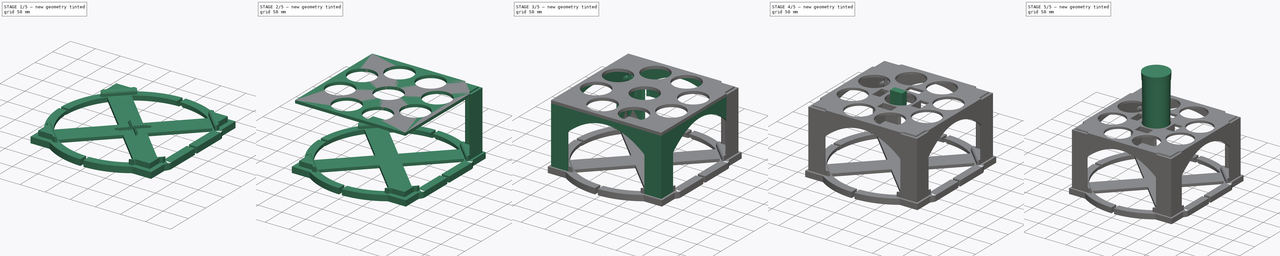
[diagram: build sequence overview — one tinted view per stage of 5, left to right]
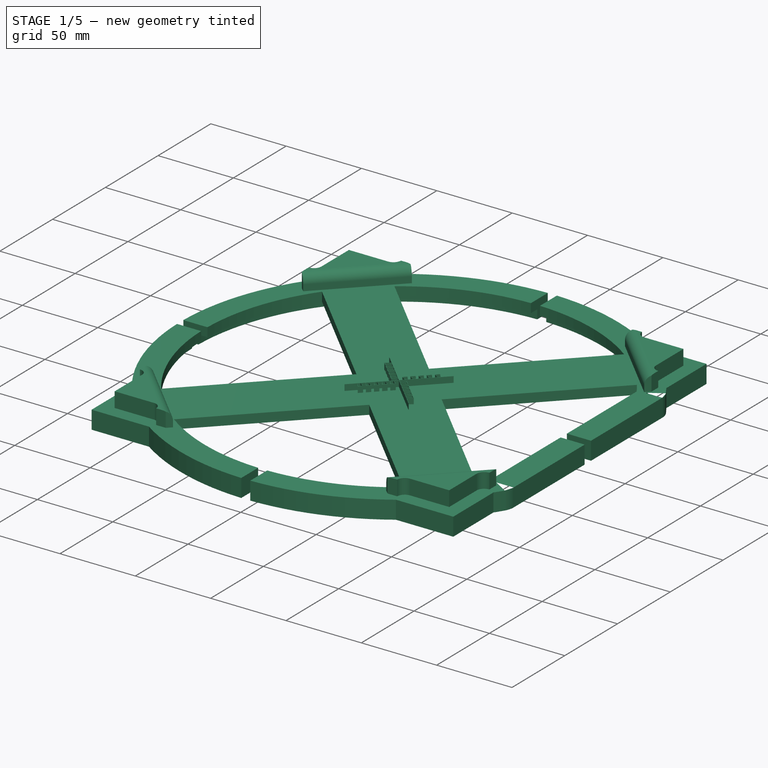
[diagram: stage 1 of 5 — iso view after this stage's code; geometry added in this stage tinted green]
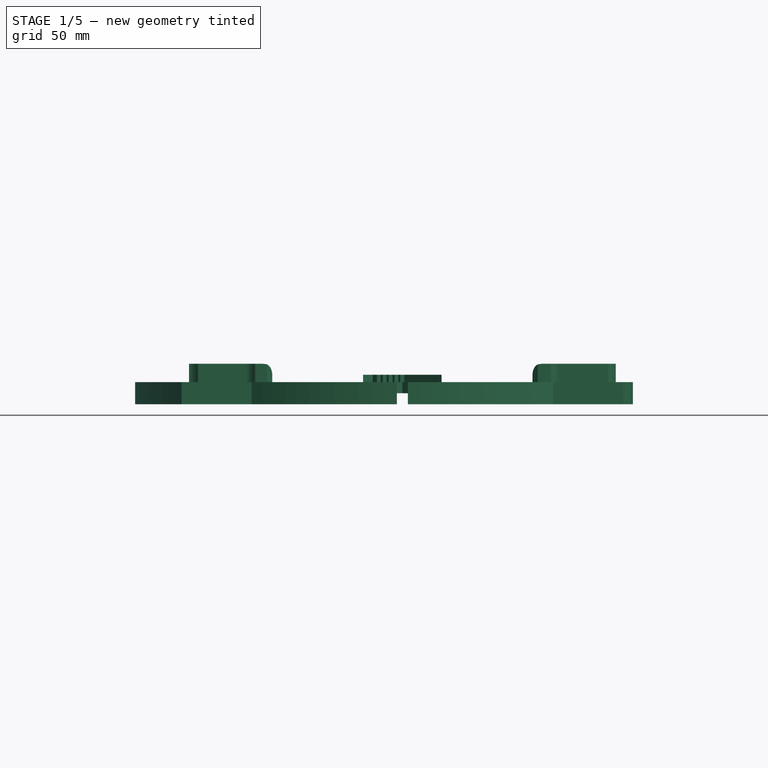
[diagram: stage 1 of 5 — front view after this stage's code; geometry added in this stage tinted green]
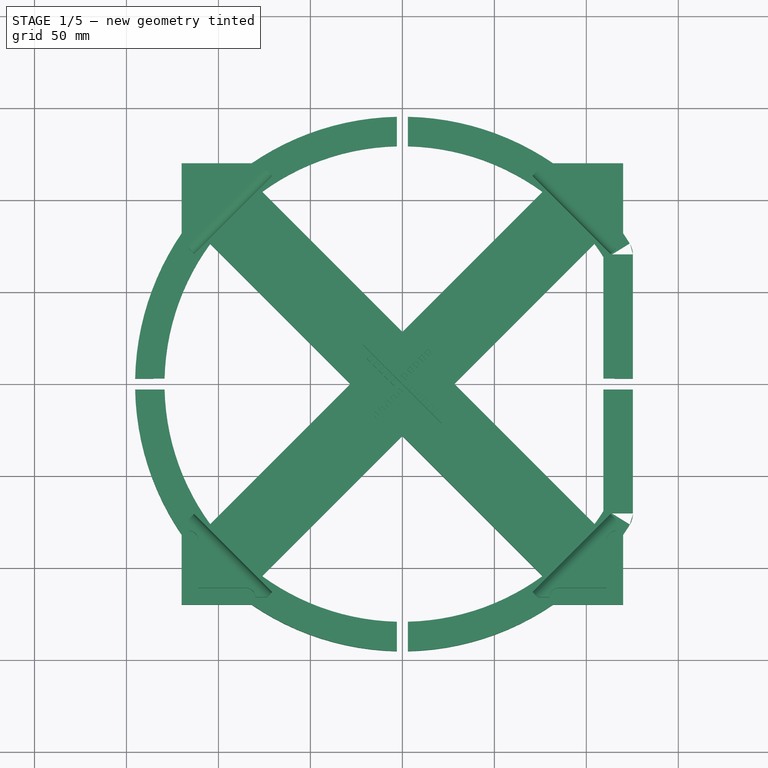
[diagram: stage 1 of 5 — top view after this stage's code; geometry added in this stage tinted green]
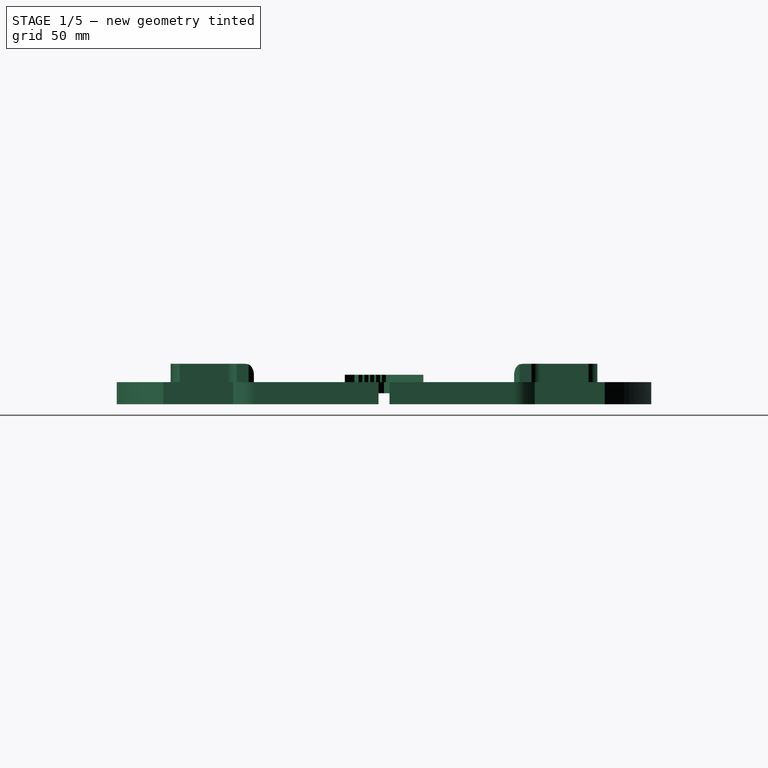
[diagram: stage 1 of 5 — right view after this stage's code; geometry added in this stage tinted green]
FCSTD DOCUMENT  (FreeCAD 0.20R29603 (Git))
Label: New_tray
License: All rights reserved
LicenseURL: http://en.wikipedia.org/wiki/All_rights_reserved
objects: Sketcher::SketchObject×65, PartDesign::Pad×22, PartDesign::AdditiveLoft×16, PartDesign::Body×14, PartDesign::Pocket×9, PartDesign::MultiTransform×9, PartDesign::PolarPattern×8, PartDesign::Chamfer×8, PartDesign::Fillet×6, Part::FeaturePython×6, PartDesign::Plane×3, PartDesign::Mirrored×2, PartDesign::LinearPattern×2, PartDesign::AdditivePipe×1, Image::ImagePlane×1, PartDesign::Line×1, App::DocumentObjectGroup×1
note: 234 computed .brp shape members not serialized (recipe doc carries the construction recipe); baked Part::Feature solids carry a one-line shape summary decoded from their .brp

FEATURE [PartDesign::Body] Body010  label="Body004: Robot gripper"
  Group = -> [Sketch048,Pad012]
  Origin = -> Origin011
  Placement = pos=(-50.1962,17.9282,143) rot=(0,0,1;1.0472rad)
  Tip = -> Pad012
FEATURE [Sketcher::SketchObject] Sketch049  label="Top of integration platform sketch"
  FullyConstrained = true
  sketch-geometry (3):
    g0: ArcOfCircle CenterX=0 CenterY=0 CenterZ=0 NormalX=0 NormalY=0 NormalZ=1 AngleXU=0 Radius=135 StartAngle=0.551286 EndAngle=5.7319
    g1: GeomPoint X=-135 Y=0 Z=0
    g2: LineSegment StartX=115 StartY=-70.7107 StartZ=0 EndX=115 EndY=70.7107 EndZ=0
  constraints (8):
    c: Coincident(g0,g-1)
    c: Radius(g0) = 135
    c: PointOnObject(g1,g0)
    c: PointOnObject(g1,g-1)
    c: Parallel(g2,g-2)
    c: Distance(g1,g2) = 250
    c: Coincident(g0,g2)
    c: Coincident(g0,g2)
FEATURE [Sketcher::SketchObject] Sketch050  label="Ring section sketch"
  FullyConstrained = true
  Placement = pos=(0,0,0) rot=(0.57735,0.57735,0.57735;2.0944rad)
  sketch-geometry (9):
    g0: LineSegment StartX=135.3 StartY=0 StartZ=0 EndX=135.3 EndY=-6 EndZ=0
    g1: LineSegment StartX=135.3 StartY=-6 StartZ=0 EndX=145.3 EndY=-6 EndZ=0
    g2: LineSegment StartX=129.3 StartY=0 StartZ=0 EndX=135.3 EndY=0 EndZ=0
    g3: GeomPoint X=145.3 Y=6 Z=0
    g4: GeomPoint X=129.3 Y=6 Z=0
    g5: GeomPoint X=145.3 Y=-6 Z=0
    g6: LineSegment StartX=145.3 StartY=6 StartZ=0 EndX=145.3 EndY=-6 EndZ=0
    g7: LineSegment StartX=129.3 StartY=6 StartZ=0 EndX=145.3 EndY=6 EndZ=0
    g8: LineSegment StartX=129.3 StartY=6 StartZ=0 EndX=129.3 EndY=0 EndZ=0
  constraints (21):
    c: Parallel(g0,g-2)
    c: PointOnObject(g0,g-1)
    c: Distance(g-1,g0) = 135.3
    c: Horizontal(g1)
    c: Coincident(g0,g1)
    c: DistanceY(g0,g0) = -6
    c: DistanceX(g1,g5) = 10
    c: Distance(g5,g3) = 12
    c: Distance(g4,g3) = 16
    c: PointOnObject(g2,g-1)
    c: Coincident(g2,g0)
    c: Coincident(g6,g1)
    c: Vertical(g6)
    c: Coincident(g7,g6)
    c: Horizontal(g7)
    c: Coincident(g8,g7)
    c: Coincident(g8,g2)
    c: Vertical(g8)
    c: Coincident(g7,g4)
    c: Coincident(g3,g6)
    c: Coincident(g1,g5)
FEATURE [Sketcher::SketchObject] Sketch051  label="Sweep path (filleted)"
  FullyConstrained = true
  sketch-geometry (5):
    g0: ArcOfCircle CenterX=0 CenterY=0 CenterZ=0 NormalX=0 NormalY=0 NormalZ=1 AngleXU=0 Radius=135 StartAngle=0.553393 EndAngle=5.72979
    g1: GeomPoint X=-135 Y=0 Z=0
    g2: LineSegment StartX=115 StartY=-70.4273 StartZ=0 EndX=115 EndY=70.4273 EndZ=0
    g3: ArcOfCircle CenterX=114 CenterY=70.4273 CenterZ=0 NormalX=0 NormalY=0 NormalZ=1 AngleXU=0 Radius=1 StartAngle=3.7e-15 EndAngle=0.553393
    g4: ArcOfCircle CenterX=114 CenterY=-70.4273 CenterZ=0 NormalX=0 NormalY=0 NormalZ=1 AngleXU=0 Radius=1 StartAngle=5.72979 EndAngle=6.28319
  constraints (12):
    c: Coincident(g0,g-1)
    c: Radius(g0) = 135
    c: PointOnObject(g1,g0)
    c: PointOnObject(g1,g-1)
    c: Parallel(g2,g-2)
    c: Distance(g1,g2) = 250
    c: Tangent(g2,g3) = -1.5708
    c: Tangent(g0,g3) = -1.5708
    c: Radius(g3) = 1
    c: Tangent(g2,g4) = -1.5708
    c: Tangent(g0,g4) = -1.5708
    c: Radius(g4) = 1
FEATURE [PartDesign::AdditivePipe] AdditivePipe
  AuxilleryCurvelinear = true
  AuxillerySpineTangent = false
  Binormal = (0,0,0)
  Mode = 0
  Placement = pos=(0,0,0) rot=(0.57735,0.57735,0.57735;2.0944rad)
  Profile = -> Sketch050
  Spine = -> Sketch051
  SpineTangent = false
  Transformation = 0
  Transition = 0
FEATURE [PartDesign::Body] Body013
  Group = -> [Sketch063,Pad016,Sketch064,Pocket005,Sketch065,Pocket006,Sketch066,Pad017,DatumPlane001,Sketch067,Pad018,Sketch068,Pad019,Sketch069,Pad020,Sketch070,Pad021,MultiTransform003,PolarPattern005,Chamfer006,Fillet005,Chamfer007,Sketch071,Pocket007,Fillet006,Chamfer008,Sketch072,Pad022,Chamfer009,MultiTransform004,PolarPattern006]
  Origin = -> Origin014
  Placement = pos=(0,0,123) rot=(0,0,1;0rad)
  Tip = -> MultiTransform004
FEATURE [PartDesign::Plane] DatumPlane002
  AttachmentOffset = pos=(0,0,0) rot=(0,1,0;0.785398rad)
  Length = 424.932
  MapMode = 5
  Placement = pos=(0,0,0) rot=(0.281085,0.678598,0.678598;2.59356rad)
  ResizeMode = 0
  Support = -> [YZ_Plane012]
  Width = 78.1696
FEATURE [Sketcher::SketchObject] Sketch073
  FullyConstrained = true
  MapMode = 5
  Placement = pos=(0,0,0) rot=(0.281085,0.678598,0.678598;2.59356rad)
  Support = -> [DatumPlane002]
  sketch-geometry (5):
    g0: LineSegment StartX=-20 StartY=6 StartZ=0 EndX=-20 EndY=0 EndZ=0
    g1: LineSegment StartX=-20 StartY=0 StartZ=0 EndX=20 EndY=0 EndZ=0
    g2: LineSegment StartX=20 StartY=0 StartZ=0 EndX=20 EndY=6 EndZ=0
    g3: LineSegment StartX=20 StartY=6 StartZ=0 EndX=-20 EndY=6 EndZ=0
    g4: GeomPoint X=0 Y=3 Z=0
  constraints (13):
    c: Coincident(g0,g1)
    c: Coincident(g1,g2)
    c: Coincident(g2,g3)
    c: Coincident(g3,g0)
    c: Horizontal(g1)
    c: Horizontal(g3)
    c: Vertical(g0)
    c: Vertical(g2)
    c: Symmetric(g1,g0,g4)
    c: Distance(g2) = 6
    c: Distance(g3) = 40
    c: PointOnObject(g4,g-2)
    c: Distance(g4,g-1) = 3
FEATURE [PartDesign::Pad] Pad023
  BaseFeature = -> AdditivePipe
  Direction = (0.707107,0.707107,1e-16)
  Length = 15
  Length2 = 10
  Placement = pos=(0,0,0) rot=(0.57735,0.57735,0.57735;2.0944rad)
  Profile = -> Sketch073
  ReferenceAxis = -> Sketch073 [N_Axis]
  Reversed = true
  Type = 2
FEATURE [PartDesign::Pad] Pad024
  BaseFeature = -> Pad023
  Direction = (0.707107,0.707107,2e-16)
  Length = 135
  Length2 = 10
  Placement = pos=(0,0,0) rot=(0.57735,0.57735,0.57735;2.0944rad)
  Profile = -> Pad023 [Face18]
  Type = 0
FEATURE [PartDesign::Mirrored] Mirrored
  MirrorPlane = -> XZ_Plane012
  Placement = pos=(0,0,0) rot=(0.57735,0.57735,0.57735;2.0944rad)
FEATURE [PartDesign::MultiTransform] MultiTransform005
  BaseFeature = -> Pad024
  Originals = -> [Pad024,Pad023]
  Placement = pos=(0,0,0) rot=(0.57735,0.57735,0.57735;2.0944rad)
  Transformations = -> [Mirrored]
FEATURE [Sketcher::SketchObject] Sketch074
  AttachmentOffset = pos=(0,0,0) rot=(0,0,-1;1.5708rad)
  FullyConstrained = true
  MapMode = 5
  Placement = pos=(-2.2e-15,-2.8e-15,6) rot=(0,0,-1;3.14159rad)
  Support = -> [MultiTransform005]
  sketch-geometry (13):
    g0: LineSegment StartX=-111 StartY=111 StartZ=0 EndX=-85 EndY=111 EndZ=0
    g1: LineSegment StartX=-111 StartY=111 StartZ=0 EndX=-111 EndY=85 EndZ=0
    g2: LineSegment StartX=-116 StartY=116 StartZ=0 EndX=-116 EndY=80 EndZ=0
    g3: LineSegment StartX=-116 StartY=116 StartZ=0 EndX=-80 EndY=116 EndZ=0
    g4: LineSegment StartX=-116 StartY=0 StartZ=0 EndX=0 EndY=0 EndZ=0
    g5: LineSegment StartX=-116 StartY=116 StartZ=0 EndX=-116 EndY=0 EndZ=0
    g6: ArcOfCircle CenterX=-116 CenterY=85 CenterZ=0 NormalX=0 NormalY=0 NormalZ=1 AngleXU=0 Radius=5 StartAngle=4.71239 EndAngle=6.28319
    g7: ArcOfCircle CenterX=-85 CenterY=116 CenterZ=0 NormalX=0 NormalY=0 NormalZ=1 AngleXU=0 Radius=5 StartAngle=4.71239 EndAngle=6.28319
    g8: LineSegment StartX=-116 StartY=80 StartZ=0 EndX=-116 EndY=73.5736 EndZ=0
    g9: LineSegment StartX=-80 StartY=116 StartZ=0 EndX=-73.5736 EndY=116 EndZ=0
    g10: LineSegment StartX=-73.5736 StartY=116 StartZ=0 EndX=-70.7452 EndY=113.172 EndZ=0
    g11: LineSegment StartX=-116 StartY=73.5736 StartZ=0 EndX=-113.172 EndY=70.7452 EndZ=0
    g12: LineSegment StartX=-70.7452 StartY=113.172 StartZ=0 EndX=-113.172 EndY=70.7452 EndZ=0
  constraints (37):
    c: Horizontal(g0)
    c: Coincident(g1,g0)
    c: Vertical(g1)
    c: Vertical(g2)
    c: Coincident(g3,g2)
    c: Horizontal(g3)
    c: Equal(g3,g2)
    c: Distance(g3) = 36
    c: PointOnObject(g4,g-1)
    c: Coincident(g4,g-1)
    c: Distance(g4) = 116
    c: Coincident(g5,g2)
    c: Coincident(g5,g4)
    c: Vertical(g5)
    c: Equal(g5,g4)
    c: PointOnObject(g6,g2)
    c: Coincident(g6,g2)
    c: PointOnObject(g7,g3)
    c: Coincident(g7,g3)
    c: Tangent(g0,g7) = -1.5708
    c: Tangent(g1,g6) = 1.5708
    c: Distance(g6,g1) = 5
    c: Equal(g7,g6)
    c: Coincident(g8,g6)
    c: PointOnObject(g8,g5)
    c: Coincident(g9,g7)
    c: Horizontal(g9)
    c: Equal(g9,g8)
    c: Distance(g9,g8) = 60
    c: Coincident(g10,g9)
    c: Coincident(g11,g8)
    c: Equal(g10,g11)
    c: Coincident(g12,g10)
    c: Coincident(g12,g11)
    c: Parallel(g10,g11)
    c: Angle(g5,g11) = 0.785398
    c: Distance(g10) = 4
FEATURE [PartDesign::Pad] Pad025
  BaseFeature = -> MultiTransform005
  Direction = (-3e-16,-5e-16,1)
  Length = 10
  Length2 = 10
  Placement = pos=(0,0,0) rot=(0.57735,0.57735,0.57735;2.0944rad)
  Profile = -> Sketch074
  ReferenceAxis = -> Sketch074 [N_Axis]
  Type = 0
FEATURE [Sketcher::SketchObject] Sketch075
  FullyConstrained = true
  MapMode = 5
  Placement = pos=(-4e-16,0,6) rot=(0,0,-1;1.5708rad)
  Support = -> [Pad025]
  sketch-geometry (3):
    g0: ArcOfCircle CenterX=0 CenterY=0 CenterZ=0 NormalX=0 NormalY=0 NormalZ=1 AngleXU=0 Radius=145.3 StartAngle=0.59904 EndAngle=0.971757
    g1: LineSegment StartX=81.9273 StartY=120 StartZ=0 EndX=120 EndY=120 EndZ=0
    g2: LineSegment StartX=120 StartY=120 StartZ=0 EndX=120 EndY=81.9273 EndZ=0
  constraints (9):
    c: Coincident(g0,g-1)
    c: Radius(g0) = 145.3
    c: Horizontal(g1)
    c: Coincident(g2,g1)
    c: Coincident(g2,g0)
    c: Vertical(g2)
    c: Coincident(g0,g1)
    c: DistanceX(g0,g1) = 120
    c: Equal(g1,g2)
FEATURE [PartDesign::Pad] Pad026
  BaseFeature = -> Pad025
  Direction = (-1e-16,2e-16,1)
  Length = 12
  Length2 = 10
  Placement = pos=(0,0,0) rot=(0.57735,0.57735,0.57735;2.0944rad)
  Profile = -> Sketch075
  ReferenceAxis = -> Sketch075 [N_Axis]
  Reversed = true
  Type = 0
FEATURE [PartDesign::PolarPattern] PolarPattern007
  Angle = 360
  Axis = -> Sketch074 [N_Axis]
  Occurrences = 4
  Placement = pos=(0,0,0) rot=(0.57735,0.57735,0.57735;2.0944rad)
FEATURE [PartDesign::MultiTransform] MultiTransform006
  BaseFeature = -> Pad026
  Originals = -> [Pad025,Pad026]
  Placement = pos=(0,0,0) rot=(0.57735,0.57735,0.57735;2.0944rad)
  Transformations = -> [PolarPattern007]
FEATURE [Image::ImagePlane] ImagePlane
  Placement = pos=(-3,10.15,-618.6) rot=(-0.707107,0.707107,0;3.14159rad)
  XSize = 484
  YSize = 362
FEATURE [Sketcher::SketchObject] Sketch077
  FullyConstrained = true
  MapMode = 5
  Placement = pos=(0,0,1.6e-15) rot=(0.707107,0.707107,0;3.14159rad)
  Support = -> [MultiTransform006]
  sketch-geometry (1):
    g0: Circle CenterX=91 CenterY=-76 CenterZ=0 NormalX=0 NormalY=0 NormalZ=1 AngleXU=0 Radius=7
  constraints (3):
    c: Diameter(g0) = 14
    c: DistanceX(g-1,g0) = 91
    c: DistanceY(g0,g-1) = 76
FEATURE [PartDesign::Pocket] Pocket009
  BaseFeature = -> MultiTransform006
  Direction = (-2e-16,-4e-16,1)
  Length = 4
  Length2 = 5
  Placement = pos=(0,0,0) rot=(0.57735,0.57735,0.57735;2.0944rad)
  Profile = -> Sketch077
  ReferenceAxis = -> Sketch077 [N_Axis]
  Type = 0
FEATURE [PartDesign::Mirrored] Mirrored001
  MirrorPlane = -> Sketch077 [V_Axis]
  Placement = pos=(0,0,0) rot=(0.57735,0.57735,0.57735;2.0944rad)
FEATURE [PartDesign::MultiTransform] MultiTransform007
  BaseFeature = -> Pocket009
  Originals = -> [Pocket009]
  Placement = pos=(0,0,0) rot=(0.57735,0.57735,0.57735;2.0944rad)
  Transformations = -> [Mirrored001]
FEATURE [Sketcher::SketchObject] Sketch024
  FullyConstrained = true
  MapMode = 5
  Support = -> [XY_Plane015]
  sketch-geometry (8):
    g0: LineSegment StartX=15 StartY=15 StartZ=0 EndX=15.0497 EndY=15.0497 EndZ=0
    g1: LineSegment StartX=16.139 StartY=16.139 StartZ=0 EndX=13.8447 EndY=19.4156 EndZ=0
    g2: LineSegment StartX=13.8447 StartY=19.4156 StartZ=0 EndX=11.7234 EndY=17.2943 EndZ=0
    g3: LineSegment StartX=11.7234 StartY=17.2943 StartZ=0 EndX=15 EndY=15 EndZ=0
    g4: LineSegment StartX=16.0893 StartY=16.0893 StartZ=0 EndX=13.8626 EndY=19.0442 EndZ=0
    g5: LineSegment StartX=13.8626 StartY=19.0442 StartZ=0 EndX=12.0948 EndY=17.2765 EndZ=0
    g6: LineSegment StartX=12.0948 StartY=17.2765 StartZ=0 EndX=15.0497 EndY=15.0497 EndZ=0
    g7: LineSegment StartX=16.0893 StartY=16.0893 StartZ=0 EndX=16.139 EndY=16.139 EndZ=0
  constraints (25):
    c: PointOnObject(g1,g0)
    c: Coincident(g2,g1)
    c: Coincident(g3,g2)
    c: Distance(g2) = 3
    c: Parallel(g2,g0)
    c: Distance(g1) = 4
    c: Equal(g1,g3)
    c: Angle(g3,g2) = 1.39626
    c: DistanceY(g-1,g3) = 15
    c: Coincident(g5,g4)
    c: Coincident(g6,g5)
    c: Distance(g4) = 3.7
    c: Equal(g4,g6)
    c: Parallel(g5,g0)
    c: Distance(g5) = 2.5
    c: Coincident(g0,g6)
    c: Coincident(g7,g4)
    c: PointOnObject(g7,g1)
    c: Coincident(g0,g3)
    c: DistanceX(g-1,g0) = 15
    c: Parallel(g7,g0)
    c: Equal(g7,g0)
    c: Angle(g6,g5) = 1.43117
    c: Angle(g5,g4) = 1.43117
    c: Angle(g7,g-1) = 2.35619
FEATURE [PartDesign::Pad] Pad028
  Direction = (0,0,1)
  Length = 10
  Length2 = 10
  Profile = -> Sketch024
  ReferenceAxis = -> Sketch024 [N_Axis]
  Type = 0
FEATURE [PartDesign::Line] DatumLine
  AttacherType = Attacher::AttachEngineLine
  Length = 20
  MapMode = 29
  Placement = pos=(4e-15,4e-15,5) rot=(0.862856,-0.357407,-0.357407;1.71777rad)
  ResizeMode = 0
FEATURE [Sketcher::SketchObject] Sketch026
  FullyConstrained = true
  MapMode = 5
  Support = -> [XY_Plane015]
  sketch-geometry (5):
    g0: LineSegment StartX=0 StartY=0 StartZ=0 EndX=0.141421 EndY=0 EndZ=0
    g1: LineSegment StartX=0.141421 StartY=0 StartZ=0 EndX=21.3546 EndY=21.2132 EndZ=0
    g2: LineSegment StartX=21.3546 StartY=21.2132 StartZ=0 EndX=21.2132 EndY=21.3546 EndZ=0
    g3: LineSegment StartX=21.2132 StartY=21.3546 StartZ=0 EndX=0 EndY=0.141421 EndZ=0
    g4: LineSegment StartX=0 StartY=0.141421 StartZ=0 EndX=0 EndY=0 EndZ=0
  constraints (14):
    c: Coincident(g0,g-1)
    c: PointOnObject(g0,g-1)
    c: Coincident(g1,g0)
    c: Coincident(g2,g1)
    c: Coincident(g3,g2)
    c: PointOnObject(g3,g-2)
    c: Coincident(g4,g3)
    c: Coincident(g4,g0)
    c: Equal(g3,g1)
    c: Perpendicular(g2,g3)
    c: Angle(g-1,g1) = 0.785398
    c: Distance(g3,g0) = 0.2
    c: Parallel(g1,g3)
    c: Distance(g1,g0) = 30
FEATURE [PartDesign::Pad] Pad029
  BaseFeature = -> Pad028
  Direction = (0,0,1)
  Length = 10
  Length2 = 10
  Profile = -> Sketch026
  ReferenceAxis = -> Sketch026 [N_Axis]
  Type = 0
FEATURE [PartDesign::PolarPattern] PolarPattern002
  Angle = 360
  Axis = -> Sketch026 [N_Axis]
  BaseFeature = -> Pad029
  Occurrences = 4
  Originals = -> [Pad029]
FEATURE [PartDesign::LinearPattern] LinearPattern
  Direction = -> DatumLine
  Length = 18
  Occurrences = 5
FEATURE [PartDesign::PolarPattern] PolarPattern003
  Angle = 360
  Axis = -> Sketch024 [N_Axis]
  Occurrences = 4
FEATURE [PartDesign::MultiTransform] MultiTransform008
  BaseFeature = -> PolarPattern002
  Originals = -> [Pad028]
  Transformations = -> [LinearPattern,PolarPattern003]
FEATURE [PartDesign::Body] Body014
  Group = -> [Sketch024,Pad028,DatumLine,Sketch026,Pad029,PolarPattern002,MultiTransform008,LinearPattern,PolarPattern003,Sketch027,Pocket011,MultiTransform001,LinearPattern001,PolarPattern009]
  Origin = -> Origin015
  Placement = pos=(0,0,-129) rot=(0,0,1;0.785398rad)
  Tip = -> MultiTransform001
FEATURE [PartDesign::Fillet] Fillet007
  Base = -> MultiTransform007 [Face125,Face126]
  BaseFeature = -> MultiTransform007
  Placement = pos=(0,0,0) rot=(0.57735,0.57735,0.57735;2.0944rad)
  Radius = 3
  SupportTransform = false
  UseAllEdges = false
FEATURE [PartDesign::Fillet] Fillet008
  Base = -> Fillet007 [Edge230,Edge206,Edge169,Edge176]
  BaseFeature = -> Fillet007
  Placement = pos=(0,0,0) rot=(0.57735,0.57735,0.57735;2.0944rad)
  Radius = 6
  SupportTransform = false
  UseAllEdges = false
FEATURE [Sketcher::SketchObject] Sketch078
  FullyConstrained = false
  MapMode = 5
  Placement = pos=(-2.2e-15,-2.8e-15,6) rot=(0,0,-1;1.5708rad)
  Support = -> [Fillet008]
  sketch-geometry (20):
    g0: LineSegment StartX=-3 StartY=139.759 StartZ=0 EndX=-3 EndY=91.6991 EndZ=0
    g1: LineSegment StartX=-3 StartY=91.6991 StartZ=0 EndX=3 EndY=91.6991 EndZ=0
    g2: LineSegment StartX=3 StartY=91.6991 StartZ=0 EndX=3 EndY=139.759 EndZ=0
    g3: LineSegment StartX=3 StartY=139.759 StartZ=0 EndX=-3 EndY=139.759 EndZ=0
    g4: GeomPoint X=-1.4e-15 Y=115.729 Z=0
    g5: LineSegment StartX=107.253 StartY=3 StartZ=0 EndX=107.253 EndY=-3 EndZ=0
    g6: LineSegment StartX=107.253 StartY=-3 StartZ=0 EndX=164.467 EndY=-3 EndZ=0
    g7: LineSegment StartX=164.467 StartY=-3 StartZ=0 EndX=164.467 EndY=3 EndZ=0
    g8: LineSegment StartX=164.467 StartY=3 StartZ=0 EndX=107.253 EndY=3 EndZ=0
    g9: GeomPoint X=135.86 Y=0 Z=0
    g10: LineSegment StartX=-3 StartY=-121.931 StartZ=0 EndX=-3 EndY=-156.264 EndZ=0
    g11: LineSegment StartX=-3 StartY=-156.264 StartZ=0 EndX=3 EndY=-156.264 EndZ=0
    g12: LineSegment StartX=3 StartY=-156.264 StartZ=0 EndX=3 EndY=-121.931 EndZ=0
    g13: LineSegment StartX=3 StartY=-121.931 StartZ=0 EndX=-3 EndY=-121.931 EndZ=0
    g14: GeomPoint X=-7e-16 Y=-139.097 Z=0
    g15: LineSegment StartX=-112.509 StartY=-3 StartZ=0 EndX=-112.509 EndY=3 EndZ=0
    g16: LineSegment StartX=-112.509 StartY=3 StartZ=0 EndX=-161.714 EndY=3 EndZ=0
    g17: LineSegment StartX=-161.714 StartY=3 StartZ=0 EndX=-161.714 EndY=-3 EndZ=0
    g18: LineSegment StartX=-161.714 StartY=-3 StartZ=0 EndX=-112.509 EndY=-3 EndZ=0
    g19: GeomPoint X=-137.112 Y=-3e-16 Z=0
  constraints (44):
    c: Coincident(g0,g1)
    c: Coincident(g1,g2)
    c: Coincident(g2,g3)
    c: Coincident(g3,g0)
    c: Horizontal(g1)
    c: Horizontal(g3)
    c: Vertical(g0)
    c: Vertical(g2)
    c: Symmetric(g1,g0,g4)
    c: PointOnObject(g4,g-2)
    c: Coincident(g5,g6)
    c: Coincident(g6,g7)
    c: Coincident(g7,g8)
    c: Coincident(g8,g5)
    c: Horizontal(g6)
    c: Horizontal(g8)
    c: Vertical(g5)
    c: Vertical(g7)
    c: Symmetric(g6,g5,g9)
    c: PointOnObject(g9,g-1)
    c: Coincident(g10,g11)
    c: Coincident(g11,g12)
    c: Coincident(g12,g13)
    c: Coincident(g13,g10)
    c: Horizontal(g11)
    c: Horizontal(g13)
    c: Vertical(g10)
    c: Vertical(g12)
    c: Symmetric(g11,g10,g14)
    c: PointOnObject(g14,g-2)
    c: Coincident(g15,g16)
    c: Coincident(g16,g17)
    c: Coincident(g17,g18)
    c: Coincident(g18,g15)
    c: Horizontal(g16)
    c: Horizontal(g18)
    c: Vertical(g15)
    c: Vertical(g17)
    c: Symmetric(g16,g15,g19)
    c: PointOnObject(g19,g-1)
    c: Equal(g3,g15)
    c: Equal(g15,g13)
    c: Equal(g13,g5)
    c: Distance(g7) = 6
FEATURE [PartDesign::Pocket] Pocket012
  BaseFeature = -> Fillet008
  Direction = (3e-16,3e-16,-1)
  Length = 5
  Length2 = 5
  Placement = pos=(0,0,0) rot=(0.57735,0.57735,0.57735;2.0944rad)
  Profile = -> Sketch078
  ReferenceAxis = -> Sketch078 [N_Axis]
  Type = 1
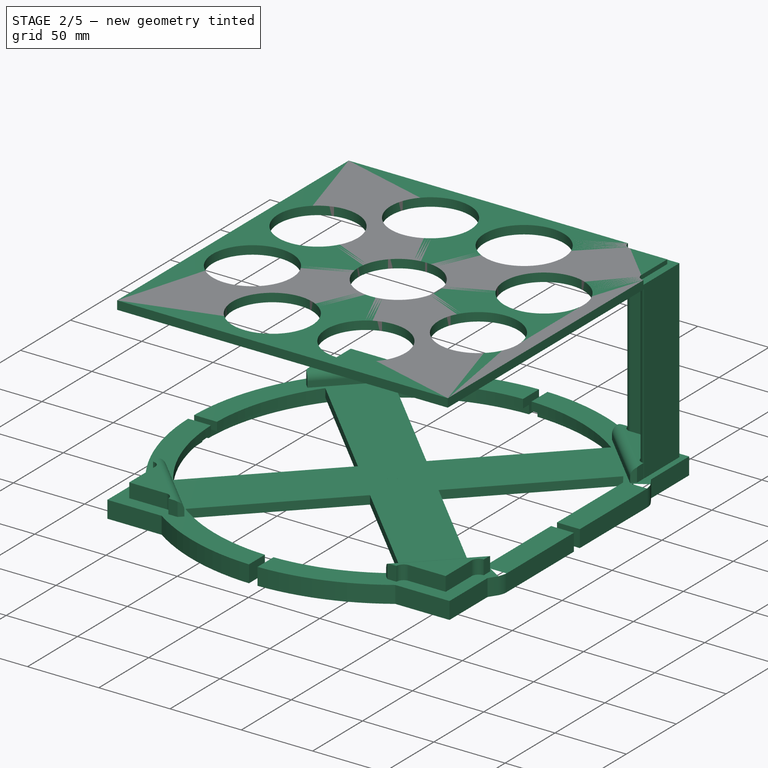
[diagram: stage 2 of 5 — iso view after this stage's code; geometry added in this stage tinted green]
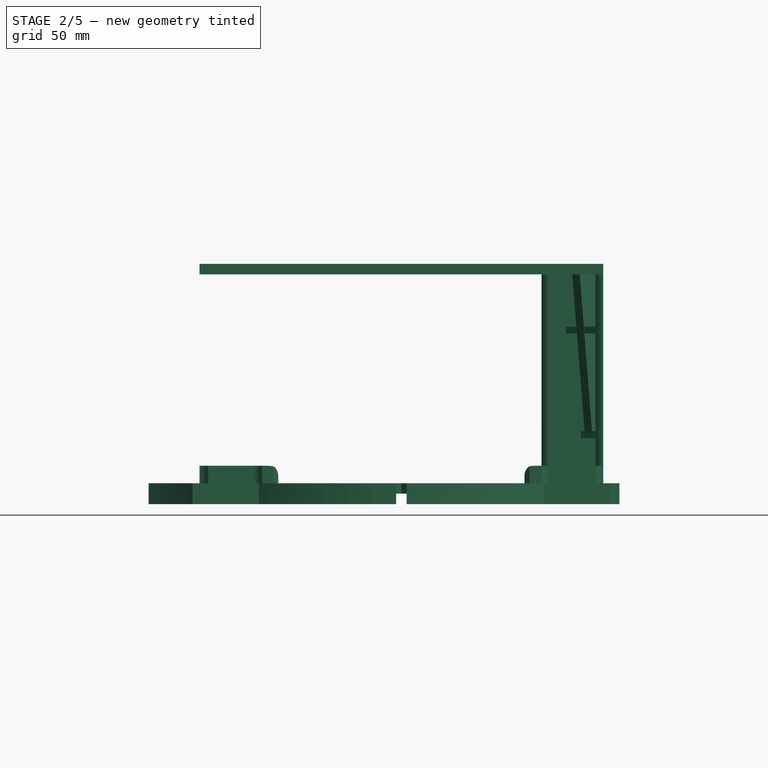
[diagram: stage 2 of 5 — front view after this stage's code; geometry added in this stage tinted green]
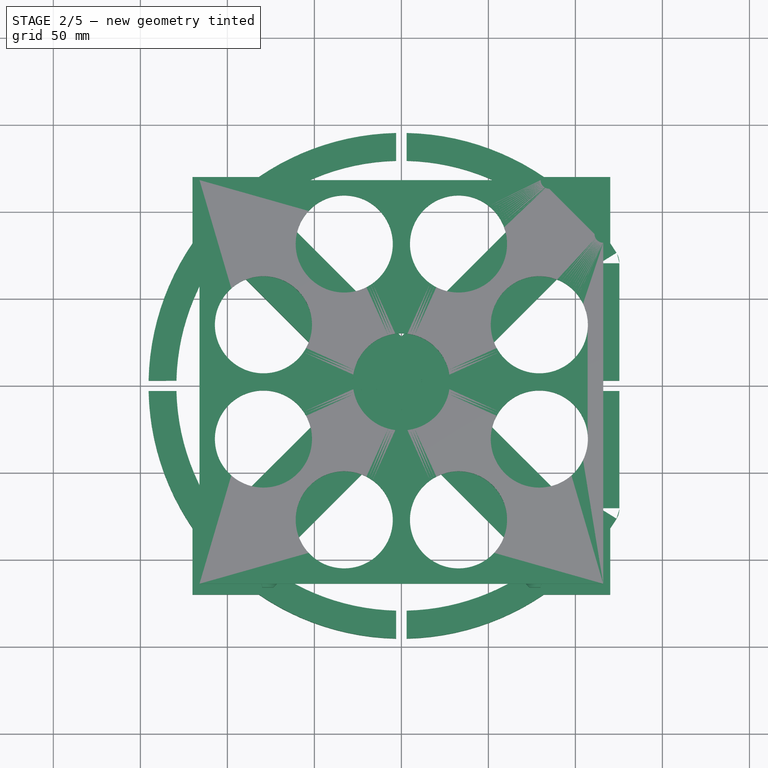
[diagram: stage 2 of 5 — top view after this stage's code; geometry added in this stage tinted green]
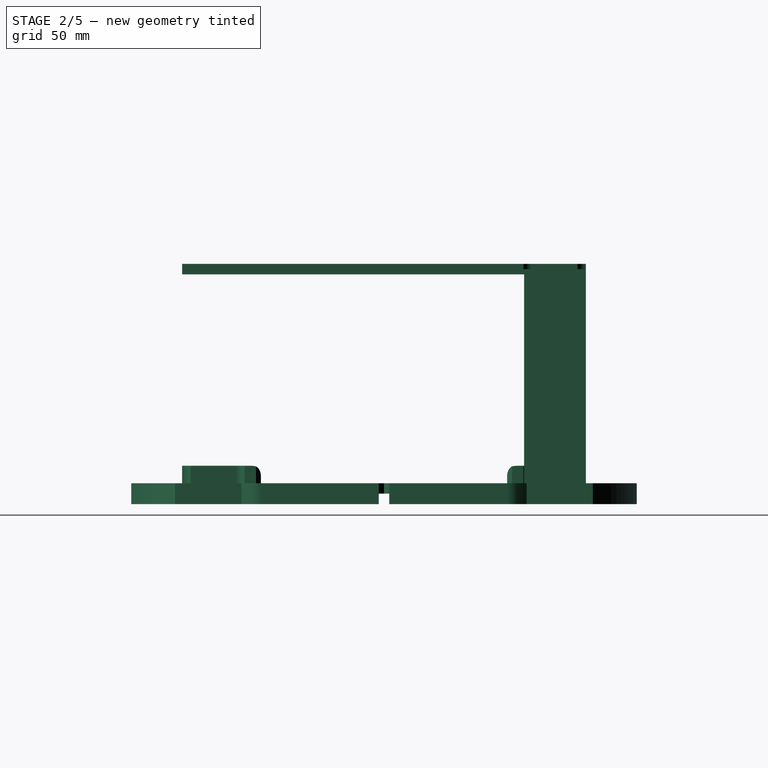
[diagram: stage 2 of 5 — right view after this stage's code; geometry added in this stage tinted green]
FEATURE [PartDesign::Body] Body
  Group = -> [Sketch,Pad,Sketch001,Pocket,Sketch002,Pocket001,Sketch003,Pad001,DatumPlane,Sketch004,Pad002,Sketch005,Pad003,Sketch006,Pad004,Sketch007,Pad005,MultiTransform,PolarPattern,Chamfer,Fillet,Chamfer001,Sketch061,Pocket004,Fillet004,Chamfer004,Sketch062,Pad015,Chamfer005,MultiTransform002,PolarPattern004]
  Origin = -> Origin
  Tip = -> MultiTransform002
FEATURE [PartDesign::PolarPattern] PolarPattern006
  Angle = 360
  Axis = -> Z_Axis014
  Occurrences = 4
FEATURE [Sketcher::SketchObject] Sketch063
  FullyConstrained = true
  MapMode = 5
  Support = -> [XY_Plane014]
  sketch-geometry (5):
    g0: LineSegment StartX=-116 StartY=116 StartZ=0 EndX=-116 EndY=-116 EndZ=0
    g1: LineSegment StartX=-116 StartY=-116 StartZ=0 EndX=116 EndY=-116 EndZ=0
    g2: LineSegment StartX=116 StartY=-116 StartZ=0 EndX=116 EndY=116 EndZ=0
    g3: LineSegment StartX=116 StartY=116 StartZ=0 EndX=-116 EndY=116 EndZ=0
    g4: GeomPoint X=0 Y=0 Z=0
  constraints (12):
    c: Coincident(g0,g1)
    c: Coincident(g1,g2)
    c: Coincident(g2,g3)
    c: Coincident(g3,g0)
    c: Horizontal(g1)
    c: Horizontal(g3)
    c: Vertical(g0)
    c: Vertical(g2)
    c: Symmetric(g1,g0,g4)
    c: Coincident(g4,g-1)
    c: Equal(g3,g2)
    c: Distance(g2) = 232
FEATURE [PartDesign::Pad] Pad016
  Direction = (0,0,1)
  Length = 6
  Length2 = 10
  Profile = -> Sketch063
  ReferenceAxis = -> Sketch063 [N_Axis]
  Type = 0
FEATURE [Sketcher::SketchObject] Sketch064
  FullyConstrained = true
  MapMode = 5
  Placement = pos=(0,0,6) rot=(0,0,1;0rad)
  Support = -> [Pad016]
  sketch-geometry (19):
    g0: Circle CenterX=0 CenterY=0 CenterZ=0 NormalX=0 NormalY=0 NormalZ=1 AngleXU=0 Radius=27.9
    g1: Circle CenterX=79.2689 CenterY=-32.8342 CenterZ=0 NormalX=0 NormalY=0 NormalZ=1 AngleXU=0 Radius=27.9
    g2: LineSegment StartX=79.2689 StartY=-32.8342 StartZ=0 EndX=79.2689 EndY=32.8342 EndZ=0
    g3: LineSegment StartX=79.2689 StartY=32.8342 StartZ=0 EndX=32.8342 EndY=79.2689 EndZ=0
    g4: LineSegment StartX=32.8342 StartY=79.2689 StartZ=0 EndX=-32.8342 EndY=79.2689 EndZ=0
    g5: LineSegment StartX=-32.8342 StartY=79.2689 StartZ=0 EndX=-79.2689 EndY=32.8342 EndZ=0
    g6: LineSegment StartX=-79.2689 StartY=32.8342 StartZ=0 EndX=-79.2689 EndY=-32.8342 EndZ=0
    g7: LineSegment StartX=-79.2689 StartY=-32.8342 StartZ=0 EndX=-32.8342 EndY=-79.2689 EndZ=0
    g8: LineSegment StartX=-32.8342 StartY=-79.2689 StartZ=0 EndX=32.8342 EndY=-79.2689 EndZ=0
    g9: LineSegment StartX=32.8342 StartY=-79.2689 StartZ=0 EndX=79.2689 EndY=-32.8342 EndZ=0
    g10: Circle CenterX=0 CenterY=0 CenterZ=0 NormalX=0 NormalY=0 NormalZ=1 AngleXU=0 Radius=85.8
    g11: Circle CenterX=79.2689 CenterY=32.8342 CenterZ=0 NormalX=0 NormalY=0 NormalZ=1 AngleXU=0 Radius=27.9
    g12: Circle CenterX=32.8342 CenterY=79.2689 CenterZ=0 NormalX=0 NormalY=0 NormalZ=1 AngleXU=0 Radius=27.9
    g13: Circle CenterX=-32.8342 CenterY=79.2689 CenterZ=0 NormalX=0 NormalY=0 NormalZ=1 AngleXU=0 Radius=27.9
    g14: Circle CenterX=-79.2689 CenterY=32.8342 CenterZ=0 NormalX=0 NormalY=0 NormalZ=1 AngleXU=0 Radius=27.9
    g15: Circle CenterX=-79.2689 CenterY=-32.8342 CenterZ=0 NormalX=0 NormalY=0 NormalZ=1 AngleXU=0 Radius=27.9
    g16: Circle CenterX=-32.8342 CenterY=-79.2689 CenterZ=0 NormalX=0 NormalY=0 NormalZ=1 AngleXU=0 Radius=27.9
    g17: Circle CenterX=32.8342 CenterY=-79.2689 CenterZ=0 NormalX=0 NormalY=0 NormalZ=1 AngleXU=0 Radius=27.9
    g18: LineSegment StartX=25.7762 StartY=-10.6769 StartZ=0 EndX=53.4926 EndY=-22.1574 EndZ=0
  constraints (42):
    c: Coincident(g0,g-1)
    c: Diameter(g0) = 55.8
    c: Equal(g1,g0)
    c: Coincident(g2,g3)
    c: Coincident(g3,g4)
    c: Coincident(g4,g5)
    c: Coincident(g5,g6)
    c: Coincident(g6,g7)
    c: Coincident(g7,g8)
    c: Coincident(g8,g9)
    c: Coincident(g9,g2)
    c: Equal(g2, g3-g9) x7
    c: PointOnObject(g2,g10)
    c: PointOnObject(g3,g10)
    c: PointOnObject(g4,g10)
    c: PointOnObject(g5,g10)
    c: PointOnObject(g6,g10)
    c: PointOnObject(g7,g10)
    c: PointOnObject(g8,g10)
    c: PointOnObject(g9,g10)
    c: Coincident(g10,g0)
    c: Coincident(g9,g1)
    c: Coincident(g11,g2)
    c: Coincident(g12,g3)
    c: Coincident(g13,g4)
    c: Coincident(g14,g5)
    c: Coincident(g15,g6)
    c: Coincident(g16,g7)
    c: Coincident(g17,g8)
    c: Equal(g1,g11)
    c: Equal(g11,g12)
    c: Equal(g12,g13)
    c: Equal(g13,g14)
    c: Equal(g15,g16)
    c: Equal(g15,g14)
    c: Equal(g16,g17)
    c: Vertical(g2)
    c: PointOnObject(g18,g0)
    c: PointOnObject(g18,g1)
    c: Perpendicular(g0,g18)
    c: Perpendicular(g1,g18)
    c: Distance(g18) = 30
FEATURE [PartDesign::Pocket] Pocket005
  BaseFeature = -> Pad016
  Direction = (0,0,-1)
  Length = 5
  Length2 = 5
  Profile = -> Sketch064
  ReferenceAxis = -> Sketch064 [N_Axis]
  Type = 1
FEATURE [Sketcher::SketchObject] Sketch065
  FullyConstrained = true
  MapMode = 5
  Placement = pos=(0,0,6) rot=(0,0,1;0rad)
  Support = -> [Pocket005]
  sketch-geometry (8):
    g0: LineSegment StartX=80 StartY=116 StartZ=0 EndX=116 EndY=116 EndZ=0
    g1: LineSegment StartX=116 StartY=116 StartZ=0 EndX=116 EndY=80 EndZ=0
    g2: LineSegment StartX=85 StartY=111 StartZ=0 EndX=111 EndY=111 EndZ=0
    g3: LineSegment StartX=111 StartY=111 StartZ=0 EndX=111 EndY=85 EndZ=0
    g4: ArcOfCircle CenterX=85 CenterY=116 CenterZ=0 NormalX=0 NormalY=0 NormalZ=1 AngleXU=0 Radius=5 StartAngle=3.14159 EndAngle=4.71239
    g5: ArcOfCircle CenterX=116 CenterY=85 CenterZ=0 NormalX=0 NormalY=0 NormalZ=1 AngleXU=0 Radius=5 StartAngle=3.14159 EndAngle=4.71239
    g6: LineSegment StartX=116 StartY=116 StartZ=0 EndX=116 EndY=0 EndZ=0
    g7: LineSegment StartX=116 StartY=0 StartZ=0 EndX=0 EndY=0 EndZ=0
  constraints (24):
    c: Horizontal(g0)
    c: Coincident(g1,g0)
    c: Vertical(g1)
    c: Horizontal(g2)
    c: Coincident(g3,g2)
    c: Vertical(g3)
    c: Equal(g0,g1)
    c: Equal(g2,g3)
    c: Distance(g0) = 36
    c: Coincident(g4,g0)
    c: Perpendicular(g4,g0)
    c: Tangent(g4,g2) = -1.5708
    c: Coincident(g5,g1)
    c: Perpendicular(g5,g1)
    c: Distance(g2,g4) = 5
    c: Coincident(g6,g0)
    c: PointOnObject(g6,g-1)
    c: Vertical(g6)
    c: Coincident(g7,g6)
    c: Coincident(g7,g-1)
    c: Equal(g6,g7)
    c: Coincident(g5,g3)
    c: Distance(g7) = 116
    c: Equal(g4,g5)
FEATURE [PartDesign::Pocket] Pocket006
  BaseFeature = -> Pocket005
  Direction = (0,0,-1)
  Length = 3
  Length2 = 5
  Profile = -> Sketch065
  ReferenceAxis = -> Sketch065 [N_Axis]
  Type = 0
FEATURE [Sketcher::SketchObject] Sketch066
  FullyConstrained = true
  MapMode = 5
  Placement = pos=(0,0,0) rot=(1,0,0;3.14159rad)
  Support = -> [Pocket006]
  sketch-geometry (8):
    g0: LineSegment StartX=116 StartY=-80.5 StartZ=0 EndX=116 EndY=-116 EndZ=0
    g1: LineSegment StartX=116 StartY=-116 StartZ=0 EndX=80.5 EndY=-116 EndZ=0
    g2: LineSegment StartX=85 StartY=-111.5 StartZ=0 EndX=111.5 EndY=-111.5 EndZ=0
    g3: LineSegment StartX=111.5 StartY=-111.5 StartZ=0 EndX=111.5 EndY=-85 EndZ=0
    g4: ArcOfCircle CenterX=116 CenterY=-85 CenterZ=0 NormalX=0 NormalY=0 NormalZ=1 AngleXU=0 Radius=4.5 StartAngle=1.5708 EndAngle=3.14159
    g5: ArcOfCircle CenterX=85 CenterY=-116 CenterZ=0 NormalX=0 NormalY=0 NormalZ=1 AngleXU=0 Radius=4.5 StartAngle=1.5708 EndAngle=3.14159
    g6: LineSegment StartX=116 StartY=-116 StartZ=0 EndX=0 EndY=-116 EndZ=0
    g7: LineSegment StartX=0 StartY=-116 StartZ=0 EndX=0 EndY=0 EndZ=0
  constraints (24):
    c: Vertical(g0)
    c: Coincident(g1,g0)
    c: Horizontal(g1)
    c: Horizontal(g2)
    c: Coincident(g3,g2)
    c: Vertical(g3)
    c: Coincident(g4,g0)
    c: Coincident(g5,g2)
    c: Coincident(g5,g1)
    c: Perpendicular(g4,g0)
    c: Perpendicular(g5,g1)
    c: Equal(g3,g2)
    c: Equal(g1,g0)
    c: Tangent(g4,g3) = 1.5708
    c: Equal(g4,g5)
    c: Distance(g0) = 35.5
    c: Distance(g4,g3) = 4.5
    c: Coincident(g6,g0)
    c: PointOnObject(g6,g-2)
    c: Horizontal(g6)
    c: Coincident(g7,g6)
    c: Coincident(g7,g-1)
    c: Distance(g7) = 116
    c: Equal(g7,g6)
FEATURE [PartDesign::Pad] Pad017
  BaseFeature = -> Pocket006
  Direction = (0,0,-1)
  Length = 120
  Length2 = 10
  Profile = -> Sketch066
  ReferenceAxis = -> Sketch066 [N_Axis]
  Type = 0
FEATURE [PartDesign::Plane] DatumPlane001
  Length = 105.339
  MapMode = 13
  Placement = pos=(38.6667,38.6667,-40) rot=(0.862856,0.357407,0.357407;1.71777rad)
  ResizeMode = 0
  Support = -> [Pad017]
  Width = 80.3003
FEATURE [PartDesign::PolarPattern] PolarPattern005
  Angle = 360
  Axis = -> Sketch066 [N_Axis]
  Occurrences = 4
FEATURE [Sketcher::SketchObject] Sketch067
  FullyConstrained = true
  MapMode = 5
  Placement = pos=(38.6667,38.6667,-40) rot=(0.862856,0.357407,0.357407;1.71777rad)
  Support = -> [DatumPlane001]
  sketch-geometry (4):
    g0: LineSegment StartX=87.2 StartY=40 StartZ=0 EndX=105.2 EndY=40 EndZ=0
    g1: LineSegment StartX=105.2 StartY=40 StartZ=0 EndX=105.2 EndY=-50 EndZ=0
    g2: LineSegment StartX=105.2 StartY=-50 StartZ=0 EndX=97.2 EndY=-50 EndZ=0
    g3: LineSegment StartX=97.2 StartY=-50 StartZ=0 EndX=87.2 EndY=40 EndZ=0
  constraints (12):
    c: Horizontal(g0)
    c: Coincident(g1,g0)
    c: Vertical(g1)
    c: Distance(g1) = 90
    c: DistanceY(g-1,g0) = 40
    c: DistanceX(g-1,g0) = 105.2
    c: Distance(g0) = 18
    c: Coincident(g2,g1)
    c: Horizontal(g2)
    c: Coincident(g3,g2)
    c: Coincident(g3,g0)
    c: Distance(g2) = 8
FEATURE [PartDesign::Pad] Pad018
  BaseFeature = -> Pad017
  Direction = (0.707107,-0.707107,0)
  Length = 6
  Length2 = 10
  Midplane = true
  Profile = -> Sketch067
  ReferenceAxis = -> Sketch067 [N_Axis]
  Type = 0
FEATURE [Sketcher::SketchObject] Sketch068
  FullyConstrained = true
  MapMode = 5
  Placement = pos=(0,0,-90) rot=(1,0,0;3.14159rad)
  Support = -> [Pad018]
  sketch-geometry (5):
    g0: LineSegment StartX=101.686 StartY=-113 StartZ=0 EndX=113 EndY=-113 EndZ=0
    g1: LineSegment StartX=113 StartY=-113 StartZ=0 EndX=113 EndY=-101.686 EndZ=0
    g2: LineSegment StartX=113 StartY=-101.686 StartZ=0 EndX=101.686 EndY=-113 EndZ=0
    g3: LineSegment StartX=113 StartY=-113 StartZ=0 EndX=0 EndY=-113 EndZ=0
    g4: LineSegment StartX=0 StartY=-113 StartZ=0 EndX=0 EndY=0 EndZ=0
  constraints (14):
    c: Horizontal(g0)
    c: Coincident(g1,g0)
    c: Vertical(g1)
    c: Coincident(g2,g1)
    c: Coincident(g2,g0)
    c: Equal(g1,g0)
    c: Coincident(g3,g0)
    c: PointOnObject(g3,g-2)
    c: Horizontal(g3)
    c: Coincident(g4,g3)
    c: Coincident(g4,g-1)
    c: Distance(g3) = 113
    c: Equal(g4,g3)
    c: Distance(g0,g2) = 8
FEATURE [PartDesign::Pad] Pad019
  BaseFeature = -> Pad018
  Direction = (0,0,-1)
  Length = 4
  Length2 = 10
  Profile = -> Sketch068
  ReferenceAxis = -> Sketch068 [N_Axis]
  Type = 0
FEATURE [Sketcher::SketchObject] Sketch069
  AttachmentOffset = pos=(0,0,-34) rot=(0,0,1;0rad)
  FullyConstrained = true
  MapMode = 5
  Placement = pos=(0,0,-34) rot=(0,0,1;0rad)
  Support = -> [XY_Plane014]
  sketch-geometry (5):
    g0: LineSegment StartX=93 StartY=113 StartZ=0 EndX=113 EndY=113 EndZ=0
    g1: LineSegment StartX=113 StartY=113 StartZ=0 EndX=113 EndY=93 EndZ=0
    g2: LineSegment StartX=93 StartY=113 StartZ=0 EndX=113 EndY=93 EndZ=0
    g3: LineSegment StartX=113 StartY=113 StartZ=0 EndX=113 EndY=0 EndZ=0
    g4: LineSegment StartX=113 StartY=0 StartZ=0 EndX=0 EndY=0 EndZ=0
  constraints (14):
    c: Horizontal(g0)
    c: Coincident(g1,g0)
    c: Vertical(g1)
    c: Coincident(g2,g0)
    c: Coincident(g2,g1)
    c: Equal(g1,g0)
    c: Coincident(g3,g0)
    c: PointOnObject(g3,g-1)
    c: Vertical(g3)
    c: Coincident(g4,g3)
    c: Coincident(g4,g-1)
    c: Equal(g3,g4)
    c: Distance(g4) = 113
    c: Distance(g1) = 20
FEATURE [PartDesign::Pad] Pad020
  BaseFeature = -> Pad019
  Direction = (0,0,1)
  Length = 4
  Length2 = 10
  Profile = -> Sketch069
  ReferenceAxis = -> Sketch069 [N_Axis]
  Type = 0
FEATURE [Sketcher::SketchObject] Sketch027
  FullyConstrained = false
  MapMode = 5
  Placement = pos=(0,0,10) rot=(0,0,1;0rad)
  Support = -> [MultiTransform008]
  sketch-geometry (4):
    g0: LineSegment StartX=14.9682 StartY=15.1112 StartZ=0 EndX=15.1479 EndY=14.9764 EndZ=0
    g1: LineSegment StartX=14.9682 StartY=15.1112 StartZ=0 EndX=16.0278 EndY=16.1709 EndZ=0
    g2: LineSegment StartX=16.0278 StartY=16.1709 StartZ=0 EndX=16.1764 EndY=15.9734 EndZ=0
    g3: LineSegment StartX=16.1764 StartY=15.9734 StartZ=0 EndX=15.1479 EndY=14.9764 EndZ=0
  constraints (4):
    c: Coincident(g1,g0)
    c: Coincident(g2,g1)
    c: Coincident(g3,g0)
    c: Coincident(g3,g2)
FEATURE [PartDesign::Pocket] Pocket011
  BaseFeature = -> MultiTransform008
  Direction = (0,0,-1)
  Length = 10
  Length2 = 5
  Profile = -> Sketch027
  ReferenceAxis = -> Sketch027 [N_Axis]
  Type = 0
FEATURE [PartDesign::LinearPattern] LinearPattern001
  Direction = -> DatumLine
  Length = 18
  Occurrences = 5
FEATURE [PartDesign::PolarPattern] PolarPattern009
  Angle = 360
  Axis = -> Sketch027 [N_Axis]
  Occurrences = 4
FEATURE [PartDesign::MultiTransform] MultiTransform001
  BaseFeature = -> Pocket011
  Originals = -> [Pocket011]
  Transformations = -> [LinearPattern001,PolarPattern009]
FEATURE [PartDesign::Body] Body011  label="Body011: Platform"
  Group = -> [Sketch050,Sketch049,Sketch051,AdditivePipe,DatumPlane002,Sketch073,Pad023,Pad024,MultiTransform005,Mirrored,Sketch074,Pad025,Sketch075,Pad026,MultiTransform006,PolarPattern007,Sketch077,Pocket009,MultiTransform007,Mirrored001,Fillet007,Fillet008,Sketch078,Pocket012]
  Origin = -> Origin012
  Placement = pos=(0,0,-126) rot=(0,0,1;0rad)
  Tip = -> Pocket012
FEATURE [Part::FeaturePython] Slice  # WARN: FeaturePython — macro-defined, semantics opaque (R4)
  Base = -> Body011
  Mode = 1
  Tolerance = 0
  Tools = -> [Body014]
FEATURE [Part::FeaturePython] Slice_child0  label="Slice.0"  # WARN: FeaturePython — macro-defined, semantics opaque (R4)
  Base = -> Slice
  FilterType = 1
  Invert = false
  OverrideMaxVal = 0
  WindowFrom = 80
  WindowTo = 100
  items = 0
FEATURE [Part::FeaturePython] Slice_child1  label="Slice.1"  # WARN: FeaturePython — macro-defined, semantics opaque (R4)
  Base = -> Slice
  FilterType = 1
  Invert = false
  OverrideMaxVal = 0
  WindowFrom = 80
  WindowTo = 100
  items = 1
FEATURE [Part::FeaturePython] Slice_child2  label="Slice.2"  # WARN: FeaturePython — macro-defined, semantics opaque (R4)
  Base = -> Slice
  FilterType = 1
  Invert = false
  OverrideMaxVal = 0
  WindowFrom = 80
  WindowTo = 100
  items = 2
FEATURE [Part::FeaturePython] Slice_child3  label="Slice.3"  # WARN: FeaturePython — macro-defined, semantics opaque (R4)
  Base = -> Slice
  FilterType = 1
  Invert = false
  OverrideMaxVal = 0
  WindowFrom = 80
  WindowTo = 100
  items = 3
FEATURE [Part::FeaturePython] Slice_child4  label="Slice.4"  # WARN: FeaturePython — macro-defined, semantics opaque (R4)
  Base = -> Slice
  FilterType = 1
  Invert = false
  OverrideMaxVal = 0
  WindowFrom = 80
  WindowTo = 100
  items = 4
FEATURE [App::DocumentObjectGroup] GrExplode_Slice  label="Exploded Slice"
  Group = -> [Slice_child0,Slice_child1,Slice_child2,Slice_child3,Slice_child4]
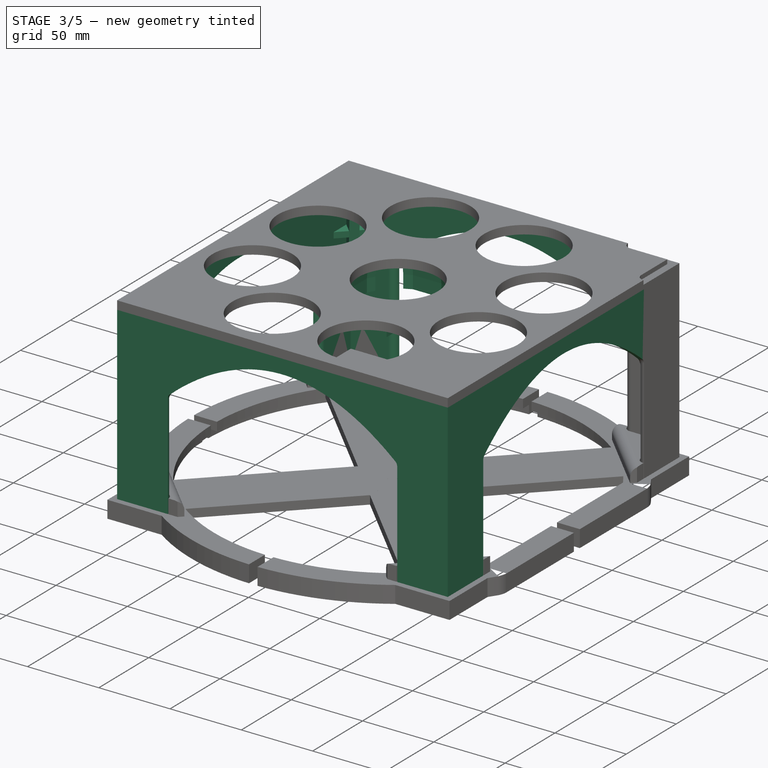
[diagram: stage 3 of 5 — iso view after this stage's code; geometry added in this stage tinted green]
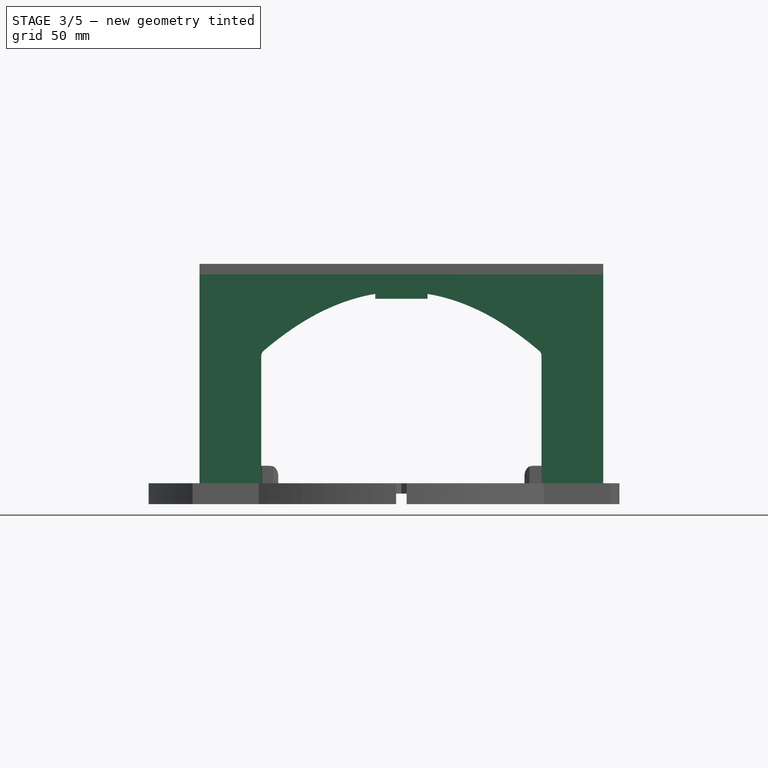
[diagram: stage 3 of 5 — front view after this stage's code; geometry added in this stage tinted green]
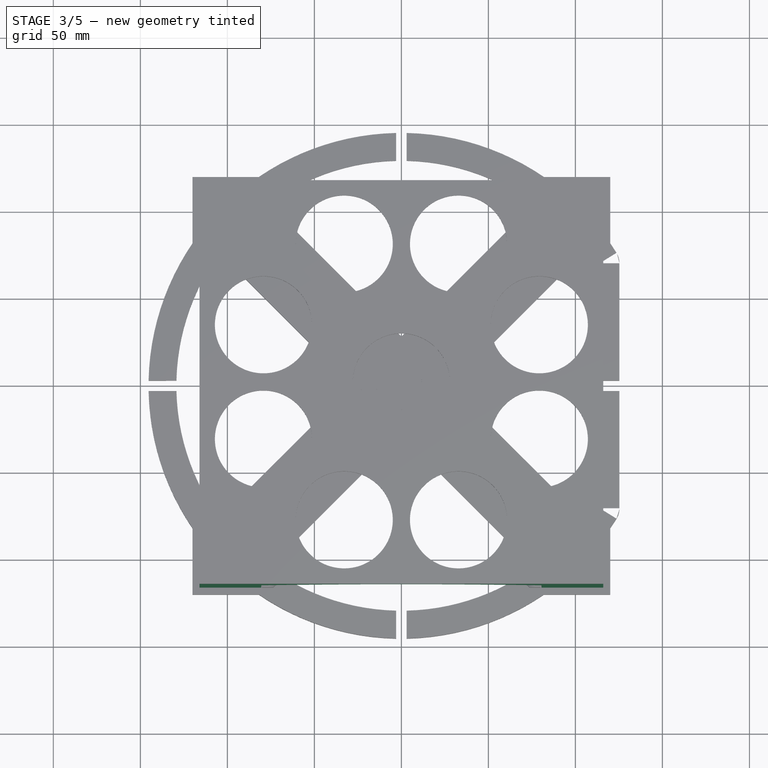
[diagram: stage 3 of 5 — top view after this stage's code; geometry added in this stage tinted green]
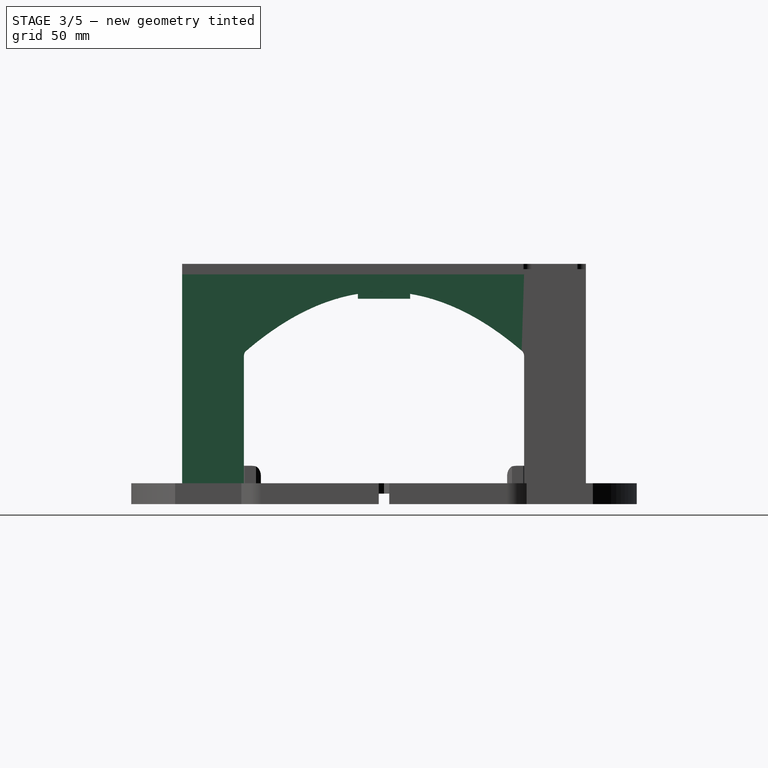
[diagram: stage 3 of 5 — right view after this stage's code; geometry added in this stage tinted green]
FEATURE [Sketcher::SketchObject] Sketch
  FullyConstrained = true
  MapMode = 5
  Support = -> [XY_Plane]
  sketch-geometry (5):
    g0: LineSegment StartX=-116 StartY=116 StartZ=0 EndX=-116 EndY=-116 EndZ=0
    g1: LineSegment StartX=-116 StartY=-116 StartZ=0 EndX=116 EndY=-116 EndZ=0
    g2: LineSegment StartX=116 StartY=-116 StartZ=0 EndX=116 EndY=116 EndZ=0
    g3: LineSegment StartX=116 StartY=116 StartZ=0 EndX=-116 EndY=116 EndZ=0
    g4: GeomPoint X=0 Y=0 Z=0
  constraints (12):
    c: Coincident(g0,g1)
    c: Coincident(g1,g2)
    c: Coincident(g2,g3)
    c: Coincident(g3,g0)
    c: Horizontal(g1)
    c: Horizontal(g3)
    c: Vertical(g0)
    c: Vertical(g2)
    c: Symmetric(g1,g0,g4)
    c: Coincident(g4,g-1)
    c: Equal(g3,g2)
    c: Distance(g2) = 232
FEATURE [PartDesign::Pad] Pad
  Direction = (0,0,1)
  Length = 6
  Length2 = 10
  Profile = -> Sketch
  ReferenceAxis = -> Sketch [N_Axis]
  Type = 0
FEATURE [Sketcher::SketchObject] Sketch001
  FullyConstrained = true
  MapMode = 5
  Placement = pos=(0,0,6) rot=(0,0,1;0rad)
  Support = -> [Pad]
  sketch-geometry (19):
    g0: Circle CenterX=0 CenterY=0 CenterZ=0 NormalX=0 NormalY=0 NormalZ=1 AngleXU=0 Radius=27.9
    g1: Circle CenterX=79.2689 CenterY=-32.8342 CenterZ=0 NormalX=0 NormalY=0 NormalZ=1 AngleXU=0 Radius=27.9
    g2: LineSegment StartX=79.2689 StartY=-32.8342 StartZ=0 EndX=79.2689 EndY=32.8342 EndZ=0
    g3: LineSegment StartX=79.2689 StartY=32.8342 StartZ=0 EndX=32.8342 EndY=79.2689 EndZ=0
    g4: LineSegment StartX=32.8342 StartY=79.2689 StartZ=0 EndX=-32.8342 EndY=79.2689 EndZ=0
    g5: LineSegment StartX=-32.8342 StartY=79.2689 StartZ=0 EndX=-79.2689 EndY=32.8342 EndZ=0
    g6: LineSegment StartX=-79.2689 StartY=32.8342 StartZ=0 EndX=-79.2689 EndY=-32.8342 EndZ=0
    g7: LineSegment StartX=-79.2689 StartY=-32.8342 StartZ=0 EndX=-32.8342 EndY=-79.2689 EndZ=0
    g8: LineSegment StartX=-32.8342 StartY=-79.2689 StartZ=0 EndX=32.8342 EndY=-79.2689 EndZ=0
    g9: LineSegment StartX=32.8342 StartY=-79.2689 StartZ=0 EndX=79.2689 EndY=-32.8342 EndZ=0
    g10: Circle CenterX=0 CenterY=0 CenterZ=0 NormalX=0 NormalY=0 NormalZ=1 AngleXU=0 Radius=85.8
    g11: Circle CenterX=79.2689 CenterY=32.8342 CenterZ=0 NormalX=0 NormalY=0 NormalZ=1 AngleXU=0 Radius=27.9
    g12: Circle CenterX=32.8342 CenterY=79.2689 CenterZ=0 NormalX=0 NormalY=0 NormalZ=1 AngleXU=0 Radius=27.9
    g13: Circle CenterX=-32.8342 CenterY=79.2689 CenterZ=0 NormalX=0 NormalY=0 NormalZ=1 AngleXU=0 Radius=27.9
    g14: Circle CenterX=-79.2689 CenterY=32.8342 CenterZ=0 NormalX=0 NormalY=0 NormalZ=1 AngleXU=0 Radius=27.9
    g15: Circle CenterX=-79.2689 CenterY=-32.8342 CenterZ=0 NormalX=0 NormalY=0 NormalZ=1 AngleXU=0 Radius=27.9
    g16: Circle CenterX=-32.8342 CenterY=-79.2689 CenterZ=0 NormalX=0 NormalY=0 NormalZ=1 AngleXU=0 Radius=27.9
    g17: Circle CenterX=32.8342 CenterY=-79.2689 CenterZ=0 NormalX=0 NormalY=0 NormalZ=1 AngleXU=0 Radius=27.9
    g18: LineSegment StartX=25.7762 StartY=-10.6769 StartZ=0 EndX=53.4926 EndY=-22.1574 EndZ=0
  constraints (42):
    c: Coincident(g0,g-1)
    c: Diameter(g0) = 55.8
    c: Equal(g1,g0)
    c: Coincident(g2,g3)
    c: Coincident(g3,g4)
    c: Coincident(g4,g5)
    c: Coincident(g5,g6)
    c: Coincident(g6,g7)
    c: Coincident(g7,g8)
    c: Coincident(g8,g9)
    c: Coincident(g9,g2)
    c: Equal(g2, g3-g9) x7
    c: PointOnObject(g2,g10)
    c: PointOnObject(g3,g10)
    c: PointOnObject(g4,g10)
    c: PointOnObject(g5,g10)
    c: PointOnObject(g6,g10)
    c: PointOnObject(g7,g10)
    c: PointOnObject(g8,g10)
    c: PointOnObject(g9,g10)
    c: Coincident(g10,g0)
    c: Coincident(g9,g1)
    c: Coincident(g11,g2)
    c: Coincident(g12,g3)
    c: Coincident(g13,g4)
    c: Coincident(g14,g5)
    c: Coincident(g15,g6)
    c: Coincident(g16,g7)
    c: Coincident(g17,g8)
    c: Equal(g1,g11)
    c: Equal(g11,g12)
    c: Equal(g12,g13)
    c: Equal(g13,g14)
    c: Equal(g15,g16)
    c: Equal(g15,g14)
    c: Equal(g16,g17)
    c: Vertical(g2)
    c: PointOnObject(g18,g0)
    c: PointOnObject(g18,g1)
    c: Perpendicular(g0,g18)
    c: Perpendicular(g1,g18)
    c: Distance(g18) = 30
FEATURE [PartDesign::Pocket] Pocket
  BaseFeature = -> Pad
  Direction = (0,0,-1)
  Length = 5
  Length2 = 5
  Profile = -> Sketch001
  ReferenceAxis = -> Sketch001 [N_Axis]
  Type = 1
FEATURE [Sketcher::SketchObject] Sketch002
  FullyConstrained = true
  MapMode = 5
  Placement = pos=(0,0,6) rot=(0,0,1;0rad)
  Support = -> [Pocket]
  sketch-geometry (8):
    g0: LineSegment StartX=80 StartY=116 StartZ=0 EndX=116 EndY=116 EndZ=0
    g1: LineSegment StartX=116 StartY=116 StartZ=0 EndX=116 EndY=80 EndZ=0
    g2: LineSegment StartX=85 StartY=111 StartZ=0 EndX=111 EndY=111 EndZ=0
    g3: LineSegment StartX=111 StartY=111 StartZ=0 EndX=111 EndY=85 EndZ=0
    g4: ArcOfCircle CenterX=85 CenterY=116 CenterZ=0 NormalX=0 NormalY=0 NormalZ=1 AngleXU=0 Radius=5 StartAngle=3.14159 EndAngle=4.71239
    g5: ArcOfCircle CenterX=116 CenterY=85 CenterZ=0 NormalX=0 NormalY=0 NormalZ=1 AngleXU=0 Radius=5 StartAngle=3.14159 EndAngle=4.71239
    g6: LineSegment StartX=116 StartY=116 StartZ=0 EndX=116 EndY=0 EndZ=0
    g7: LineSegment StartX=116 StartY=0 StartZ=0 EndX=0 EndY=0 EndZ=0
  constraints (24):
    c: Horizontal(g0)
    c: Coincident(g1,g0)
    c: Vertical(g1)
    c: Horizontal(g2)
    c: Coincident(g3,g2)
    c: Vertical(g3)
    c: Equal(g0,g1)
    c: Equal(g2,g3)
    c: Distance(g0) = 36
    c: Coincident(g4,g0)
    c: Perpendicular(g4,g0)
    c: Tangent(g4,g2) = -1.5708
    c: Coincident(g5,g1)
    c: Perpendicular(g5,g1)
    c: Distance(g2,g4) = 5
    c: Coincident(g6,g0)
    c: PointOnObject(g6,g-1)
    c: Vertical(g6)
    c: Coincident(g7,g6)
    c: Coincident(g7,g-1)
    c: Equal(g6,g7)
    c: Coincident(g5,g3)
    c: Distance(g7) = 116
    c: Equal(g4,g5)
FEATURE [PartDesign::Pocket] Pocket001
  BaseFeature = -> Pocket
  Direction = (0,0,-1)
  Length = 3
  Length2 = 5
  Profile = -> Sketch002
  ReferenceAxis = -> Sketch002 [N_Axis]
  Type = 0
FEATURE [Sketcher::SketchObject] Sketch003
  FullyConstrained = true
  MapMode = 5
  Placement = pos=(0,0,0) rot=(1,0,0;3.14159rad)
  Support = -> [Pocket001]
  sketch-geometry (8):
    g0: LineSegment StartX=116 StartY=-80.5 StartZ=0 EndX=116 EndY=-116 EndZ=0
    g1: LineSegment StartX=116 StartY=-116 StartZ=0 EndX=80.5 EndY=-116 EndZ=0
    g2: LineSegment StartX=85 StartY=-111.5 StartZ=0 EndX=111.5 EndY=-111.5 EndZ=0
    g3: LineSegment StartX=111.5 StartY=-111.5 StartZ=0 EndX=111.5 EndY=-85 EndZ=0
    g4: ArcOfCircle CenterX=116 CenterY=-85 CenterZ=0 NormalX=0 NormalY=0 NormalZ=1 AngleXU=0 Radius=4.5 StartAngle=1.5708 EndAngle=3.14159
    g5: ArcOfCircle CenterX=85 CenterY=-116 CenterZ=0 NormalX=0 NormalY=0 NormalZ=1 AngleXU=0 Radius=4.5 StartAngle=1.5708 EndAngle=3.14159
    g6: LineSegment StartX=116 StartY=-116 StartZ=0 EndX=0 EndY=-116 EndZ=0
    g7: LineSegment StartX=0 StartY=-116 StartZ=0 EndX=0 EndY=0 EndZ=0
  constraints (24):
    c: Vertical(g0)
    c: Coincident(g1,g0)
    c: Horizontal(g1)
    c: Horizontal(g2)
    c: Coincident(g3,g2)
    c: Vertical(g3)
    c: Coincident(g4,g0)
    c: Coincident(g5,g2)
    c: Coincident(g5,g1)
    c: Perpendicular(g4,g0)
    c: Perpendicular(g5,g1)
    c: Equal(g3,g2)
    c: Equal(g1,g0)
    c: Tangent(g4,g3) = 1.5708
    c: Equal(g4,g5)
    c: Distance(g0) = 35.5
    c: Distance(g4,g3) = 4.5
    c: Coincident(g6,g0)
    c: PointOnObject(g6,g-2)
    c: Horizontal(g6)
    c: Coincident(g7,g6)
    c: Coincident(g7,g-1)
    c: Distance(g7) = 116
    c: Equal(g7,g6)
FEATURE [PartDesign::Pad] Pad001
  BaseFeature = -> Pocket001
  Direction = (0,0,-1)
  Length = 120
  Length2 = 10
  Profile = -> Sketch003
  ReferenceAxis = -> Sketch003 [N_Axis]
  Type = 0
FEATURE [PartDesign::Plane] DatumPlane
  Length = 105.339
  MapMode = 13
  Placement = pos=(38.6667,38.6667,-40) rot=(0.862856,0.357407,0.357407;1.71777rad)
  ResizeMode = 0
  Support = -> [Pad001]
  Width = 80.3003
FEATURE [Sketcher::SketchObject] Sketch004
  FullyConstrained = true
  MapMode = 5
  Placement = pos=(38.6667,38.6667,-40) rot=(0.862856,0.357407,0.357407;1.71777rad)
  Support = -> [DatumPlane]
  sketch-geometry (4):
    g0: LineSegment StartX=87.2 StartY=40 StartZ=0 EndX=105.2 EndY=40 EndZ=0
    g1: LineSegment StartX=105.2 StartY=40 StartZ=0 EndX=105.2 EndY=-50 EndZ=0
    g2: LineSegment StartX=105.2 StartY=-50 StartZ=0 EndX=97.2 EndY=-50 EndZ=0
    g3: LineSegment StartX=97.2 StartY=-50 StartZ=0 EndX=87.2 EndY=40 EndZ=0
  constraints (12):
    c: Horizontal(g0)
    c: Coincident(g1,g0)
    c: Vertical(g1)
    c: Distance(g1) = 90
    c: DistanceY(g-1,g0) = 40
    c: DistanceX(g-1,g0) = 105.2
    c: Distance(g0) = 18
    c: Coincident(g2,g1)
    c: Horizontal(g2)
    c: Coincident(g3,g2)
    c: Coincident(g3,g0)
    c: Distance(g2) = 8
FEATURE [PartDesign::Pad] Pad002
  BaseFeature = -> Pad001
  Direction = (0.707107,-0.707107,0)
  Length = 6
  Length2 = 10
  Midplane = true
  Profile = -> Sketch004
  ReferenceAxis = -> Sketch004 [N_Axis]
  Type = 0
FEATURE [Sketcher::SketchObject] Sketch070
  FullyConstrained = true
  MapMode = 5
  Placement = pos=(0,116,0) rot=(0,0.707107,0.707107;3.14159rad)
  Support = -> [Pad020]
  sketch-geometry (6):
    g0: LineSegment StartX=-86 StartY=-50 StartZ=0 EndX=-86 EndY=0 EndZ=0
    g1: LineSegment StartX=-86 StartY=0 StartZ=0 EndX=86 EndY=0 EndZ=0
    g2: LineSegment StartX=86 StartY=-50 StartZ=0 EndX=86 EndY=0 EndZ=0
    g3: ArcOfParabola CenterX=0 CenterY=-10 CenterZ=0 NormalX=0 NormalY=0 NormalZ=1 Focal=46.225 AngleXU=-1.5708 StartAngle=-86 EndAngle=86
    g4: GeomPoint X=0 Y=-56.225 Z=0
    g5: LineSegment StartX=0 StartY=-10 StartZ=0 EndX=0 EndY=-56.225 EndZ=0
  constraints (17):
    c: DistanceX(g0,g-1) = 86
    c: Distance(g0,g-1) = 50
    c: PointOnObject(g0,g-1)
    c: Vertical(g0)
    c: Coincident(g1,g0)
    c: PointOnObject(g1,g-1)
    c: Coincident(g2,g1)
    c: Vertical(g2)
    c: InternalAlignment(g4,g3)
    c: Coincident(g4,g5)
    c: Coincident(g3,g5)
    c: PointOnObject(g4,g-2)
    c: PointOnObject(g3,g-2)
    c: Coincident(g2,g3)
    c: Coincident(g3,g0)
    c: DistanceX(g-1,g1) = 86
    c: Distance(g3,g-1) = 10
FEATURE [PartDesign::Pad] Pad021
  BaseFeature = -> Pad020
  Direction = (0,1,-2e-16)
  Length = 4.5
  Length2 = 10
  Profile = -> Sketch070
  ReferenceAxis = -> Sketch070 [N_Axis]
  Reversed = true
  Type = 0
FEATURE [PartDesign::MultiTransform] MultiTransform003
  BaseFeature = -> Pad021
  Originals = -> [Pad017,Pad018,Pad019,Pad020,Pad021,Pocket006]
  Transformations = -> [PolarPattern005]
FEATURE [PartDesign::Chamfer] Chamfer006
  Angle = 45
  Base = -> MultiTransform003 [Edge276,Edge277,Edge278,Edge279,Edge281,Edge282,Edge283,Edge284,Edge286,Edge287,Edge288,Edge289,Edge293,Edge294,Edge292,Edge291]
  BaseFeature = -> MultiTransform003
  ChamferType = 1
  FlipDirection = false
  Size = 0.5
  Size2 = 2
  SupportTransform = false
  UseAllEdges = false
FEATURE [PartDesign::Fillet] Fillet005
  Base = -> Chamfer006 [Edge248,Edge263,Edge245,Edge239,Edge266,Edge236,Edge261,Edge258]
  BaseFeature = -> Chamfer006
  Radius = 4
  SupportTransform = false
  UseAllEdges = false
FEATURE [PartDesign::Chamfer] Chamfer007
  Angle = 45
  Base = -> Fillet005 [Edge126,Edge128,Edge127,Edge124,Edge123,Edge122,Edge125,Edge121,Edge120]
  BaseFeature = -> Fillet005
  ChamferType = 1
  FlipDirection = false
  Size = 2
  Size2 = 1
  SupportTransform = false
  UseAllEdges = false
FEATURE [Sketcher::SketchObject] Sketch071
  FullyConstrained = true
  MapMode = 5
  Placement = pos=(0,0,6) rot=(0,0,1;0rad)
  Support = -> [Chamfer007]
  sketch-geometry (5):
    g0: LineSegment StartX=-15 StartY=51 StartZ=0 EndX=-15 EndY=33 EndZ=0
    g1: LineSegment StartX=-15 StartY=33 StartZ=0 EndX=15 EndY=33 EndZ=0
    g2: LineSegment StartX=15 StartY=33 StartZ=0 EndX=15 EndY=51 EndZ=0
    g3: LineSegment StartX=15 StartY=51 StartZ=0 EndX=-15 EndY=51 EndZ=0
    g4: GeomPoint X=0 Y=42 Z=0
  constraints (13):
    c: Coincident(g0,g1)
    c: Coincident(g1,g2)
    c: Coincident(g2,g3)
    c: Coincident(g3,g0)
    c: Horizontal(g1)
    c: Horizontal(g3)
    c: Vertical(g0)
    c: Vertical(g2)
    c: Symmetric(g1,g0,g4)
    c: PointOnObject(g4,g-2)
    c: Distance(g2) = 18
    c: Distance(g3) = 30
    c: Distance(g4,g-1) = 42
FEATURE [PartDesign::Pocket] Pocket007
  BaseFeature = -> Chamfer007
  Direction = (0,0,-1)
  Length = 5
  Length2 = 5
  Profile = -> Sketch071
  ReferenceAxis = -> Sketch071 [N_Axis]
  Type = 1
FEATURE [PartDesign::Fillet] Fillet006
  Base = -> Pocket007 [Edge127,Edge124]
  BaseFeature = -> Pocket007
  Radius = 2
  SupportTransform = false
  UseAllEdges = false
FEATURE [PartDesign::Chamfer] Chamfer008
  Angle = 45
  Base = -> Fillet006 [Edge5,Edge6,Edge4,Edge1,Edge2]
  BaseFeature = -> Fillet006
  ChamferType = 0
  FlipDirection = false
  Size = 1
  Size2 = 1
  SupportTransform = false
  UseAllEdges = false
FEATURE [Sketcher::SketchObject] Sketch072
  FullyConstrained = true
  MapMode = 5
  Placement = pos=(0,0,0) rot=(1,0,0;3.14159rad)
  Support = -> [Chamfer008]
  sketch-geometry (9):
    g0: LineSegment StartX=-15 StartY=-29 StartZ=0 EndX=-15 EndY=-33 EndZ=0
    g1: LineSegment StartX=-15 StartY=-33 StartZ=0 EndX=15 EndY=-33 EndZ=0
    g2: LineSegment StartX=15 StartY=-33 StartZ=0 EndX=15 EndY=-29 EndZ=0
    g3: LineSegment StartX=10 StartY=-29 StartZ=0 EndX=-10 EndY=-29 EndZ=0
    g4: GeomPoint X=0 Y=-31 Z=0
    g5: LineSegment StartX=-15 StartY=-29 StartZ=0 EndX=-15 EndY=-26.5 EndZ=0
    g6: LineSegment StartX=-15 StartY=-26.5 StartZ=0 EndX=-10 EndY=-29 EndZ=0
    g7: LineSegment StartX=15 StartY=-29 StartZ=0 EndX=15 EndY=-26.5 EndZ=0
    g8: LineSegment StartX=15 StartY=-26.5 StartZ=0 EndX=10 EndY=-29 EndZ=0
  constraints (25):
    c: Coincident(g0,g1)
    c: Coincident(g1,g2)
    c: Horizontal(g1)
    c: Horizontal(g3)
    c: Vertical(g0)
    c: Vertical(g2)
    c: Symmetric(g1,g0,g4)
    c: PointOnObject(g4,g-2)
    c: Distance(g1) = 30
    c: Distance(g2) = 4
    c: DistanceY(g4,g-1) = 31
    c: Coincident(g5,g0)
    c: Vertical(g5)
    c: Coincident(g6,g5)
    c: Coincident(g7,g2)
    c: Vertical(g7)
    c: Coincident(g8,g7)
    c: Equal(g5,g7)
    c: Equal(g8,g6)
    c: Coincident(g3,g6)
    c: Coincident(g3,g8)
    c: Distance(g5) = 2.5
    c: Distance(g3,g0) = 5
    c: DistanceX(g3,g-1) = 10
    c: Distance(g3,g1) = 4
FEATURE [PartDesign::Pad] Pad022
  BaseFeature = -> Chamfer008
  Direction = (0,0,-1)
  Length = 14
  Length2 = 10
  Profile = -> Sketch072
  ReferenceAxis = -> Sketch072 [N_Axis]
  Type = 0
FEATURE [PartDesign::Chamfer] Chamfer009
  Angle = 45
  Base = -> Pad022 [Edge304,Edge303,Edge302]
  BaseFeature = -> Pad022
  ChamferType = 1
  FlipDirection = false
  Size = 0.5
  Size2 = 5
  SupportTransform = false
  UseAllEdges = false
FEATURE [PartDesign::MultiTransform] MultiTransform004
  BaseFeature = -> Chamfer009
  Originals = -> [Chamfer009,Pad022,Chamfer008,Fillet006,Pocket007]
  Transformations = -> [PolarPattern006]
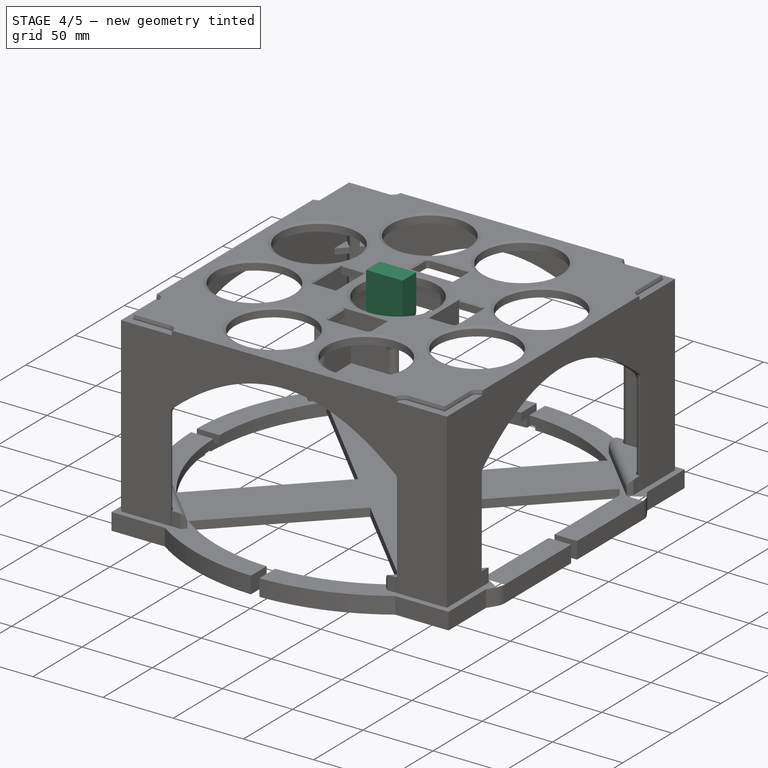
[diagram: stage 4 of 5 — iso view after this stage's code; geometry added in this stage tinted green]
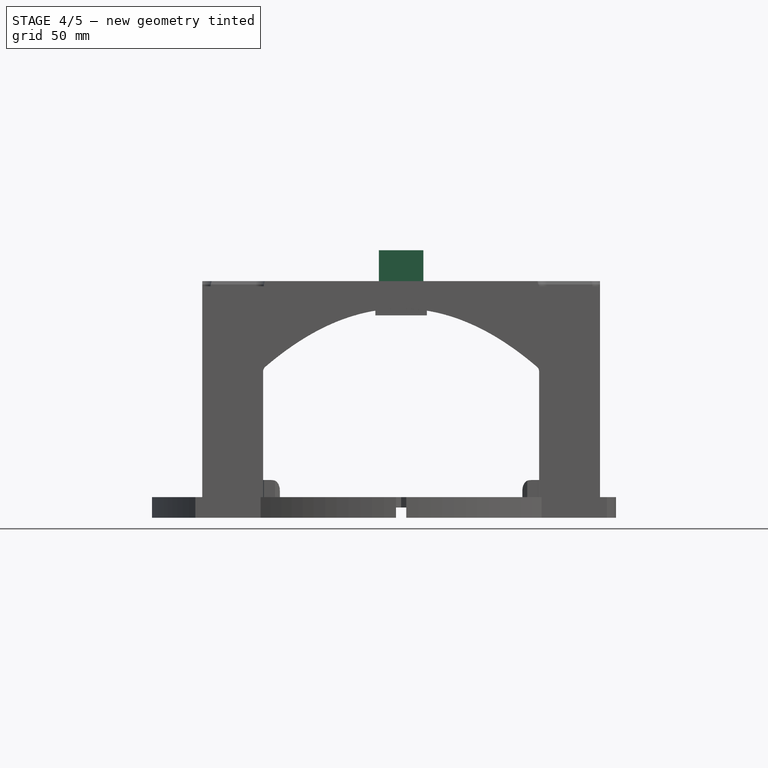
[diagram: stage 4 of 5 — front view after this stage's code; geometry added in this stage tinted green]
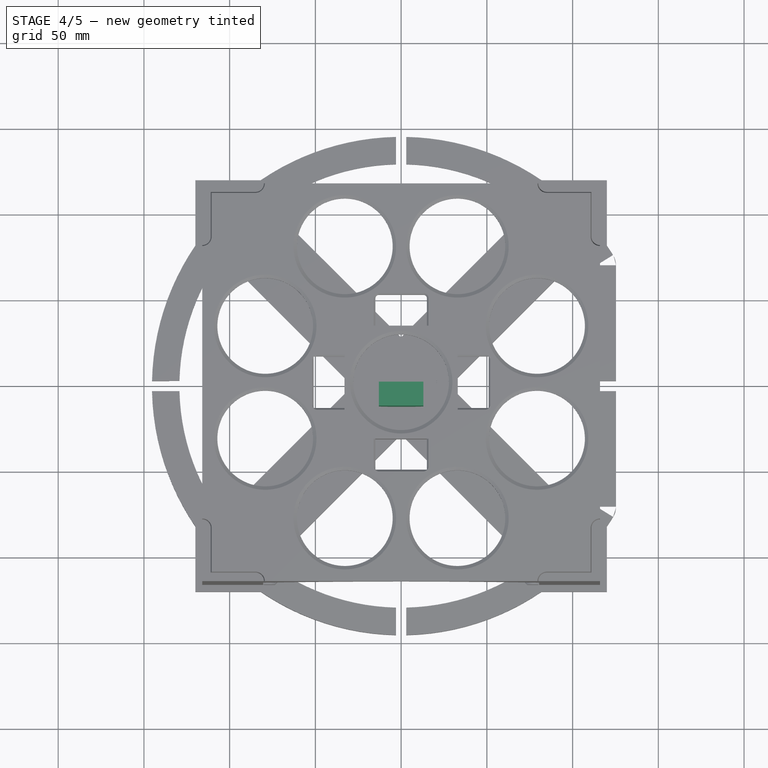
[diagram: stage 4 of 5 — top view after this stage's code; geometry added in this stage tinted green]
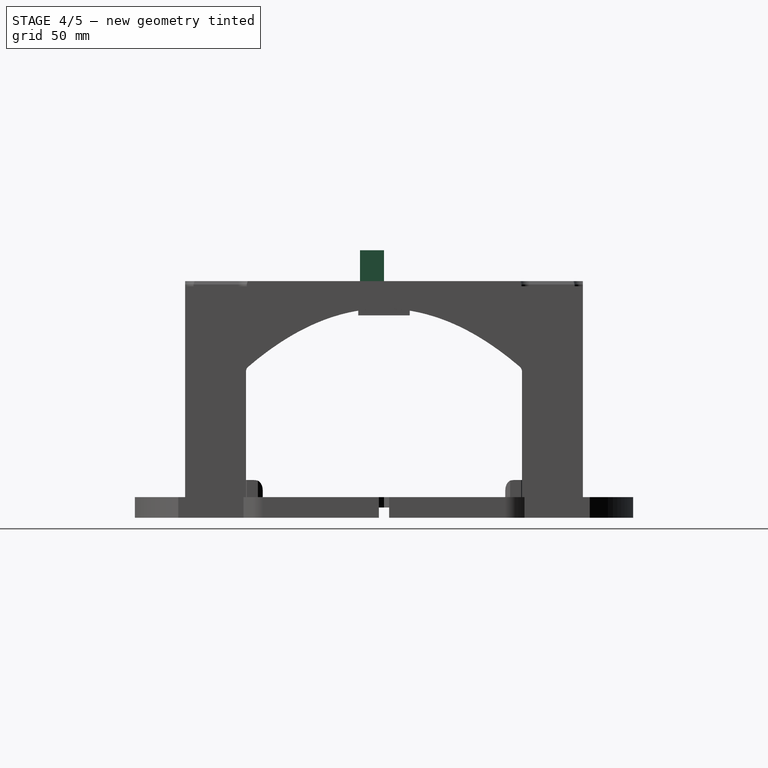
[diagram: stage 4 of 5 — right view after this stage's code; geometry added in this stage tinted green]
FEATURE [Sketcher::SketchObject] Sketch005
  FullyConstrained = true
  MapMode = 5
  Placement = pos=(0,0,-90) rot=(1,0,0;3.14159rad)
  Support = -> [Pad002]
  sketch-geometry (5):
    g0: LineSegment StartX=101.686 StartY=-113 StartZ=0 EndX=113 EndY=-113 EndZ=0
    g1: LineSegment StartX=113 StartY=-113 StartZ=0 EndX=113 EndY=-101.686 EndZ=0
    g2: LineSegment StartX=113 StartY=-101.686 StartZ=0 EndX=101.686 EndY=-113 EndZ=0
    g3: LineSegment StartX=113 StartY=-113 StartZ=0 EndX=0 EndY=-113 EndZ=0
    g4: LineSegment StartX=0 StartY=-113 StartZ=0 EndX=0 EndY=0 EndZ=0
  constraints (14):
    c: Horizontal(g0)
    c: Coincident(g1,g0)
    c: Vertical(g1)
    c: Coincident(g2,g1)
    c: Coincident(g2,g0)
    c: Equal(g1,g0)
    c: Coincident(g3,g0)
    c: PointOnObject(g3,g-2)
    c: Horizontal(g3)
    c: Coincident(g4,g3)
    c: Coincident(g4,g-1)
    c: Distance(g3) = 113
    c: Equal(g4,g3)
    c: Distance(g0,g2) = 8
FEATURE [PartDesign::Pad] Pad003
  BaseFeature = -> Pad002
  Direction = (0,0,-1)
  Length = 4
  Length2 = 10
  Profile = -> Sketch005
  ReferenceAxis = -> Sketch005 [N_Axis]
  Type = 0
FEATURE [Sketcher::SketchObject] Sketch006
  AttachmentOffset = pos=(0,0,-34) rot=(0,0,1;0rad)
  FullyConstrained = true
  MapMode = 5
  Placement = pos=(0,0,-34) rot=(0,0,1;0rad)
  Support = -> [XY_Plane]
  sketch-geometry (5):
    g0: LineSegment StartX=93 StartY=113 StartZ=0 EndX=113 EndY=113 EndZ=0
    g1: LineSegment StartX=113 StartY=113 StartZ=0 EndX=113 EndY=93 EndZ=0
    g2: LineSegment StartX=93 StartY=113 StartZ=0 EndX=113 EndY=93 EndZ=0
    g3: LineSegment StartX=113 StartY=113 StartZ=0 EndX=113 EndY=0 EndZ=0
    g4: LineSegment StartX=113 StartY=0 StartZ=0 EndX=0 EndY=0 EndZ=0
  constraints (14):
    c: Horizontal(g0)
    c: Coincident(g1,g0)
    c: Vertical(g1)
    c: Coincident(g2,g0)
    c: Coincident(g2,g1)
    c: Equal(g1,g0)
    c: Coincident(g3,g0)
    c: PointOnObject(g3,g-1)
    c: Vertical(g3)
    c: Coincident(g4,g3)
    c: Coincident(g4,g-1)
    c: Equal(g3,g4)
    c: Distance(g4) = 113
    c: Distance(g1) = 20
FEATURE [PartDesign::Pad] Pad004
  BaseFeature = -> Pad003
  Direction = (0,0,1)
  Length = 4
  Length2 = 10
  Profile = -> Sketch006
  ReferenceAxis = -> Sketch006 [N_Axis]
  Type = 0
FEATURE [Sketcher::SketchObject] Sketch007
  FullyConstrained = true
  MapMode = 5
  Placement = pos=(0,116,0) rot=(0,0.707107,0.707107;3.14159rad)
  Support = -> [Pad004]
  sketch-geometry (6):
    g0: LineSegment StartX=-86 StartY=-50 StartZ=0 EndX=-86 EndY=0 EndZ=0
    g1: LineSegment StartX=-86 StartY=0 StartZ=0 EndX=86 EndY=0 EndZ=0
    g2: LineSegment StartX=86 StartY=-50 StartZ=0 EndX=86 EndY=0 EndZ=0
    g3: ArcOfParabola CenterX=0 CenterY=-10 CenterZ=0 NormalX=0 NormalY=0 NormalZ=1 Focal=46.225 AngleXU=-1.5708 StartAngle=-86 EndAngle=86
    g4: GeomPoint X=0 Y=-56.225 Z=0
    g5: LineSegment StartX=0 StartY=-10 StartZ=0 EndX=0 EndY=-56.225 EndZ=0
  constraints (17):
    c: DistanceX(g0,g-1) = 86
    c: Distance(g0,g-1) = 50
    c: PointOnObject(g0,g-1)
    c: Vertical(g0)
    c: Coincident(g1,g0)
    c: PointOnObject(g1,g-1)
    c: Coincident(g2,g1)
    c: Vertical(g2)
    c: InternalAlignment(g4,g3)
    c: Coincident(g4,g5)
    c: Coincident(g3,g5)
    c: PointOnObject(g4,g-2)
    c: PointOnObject(g3,g-2)
    c: Coincident(g2,g3)
    c: Coincident(g3,g0)
    c: DistanceX(g-1,g1) = 86
    c: Distance(g3,g-1) = 10
FEATURE [PartDesign::Pad] Pad005
  BaseFeature = -> Pad004
  Direction = (0,1,-2e-16)
  Length = 4.5
  Length2 = 10
  Profile = -> Sketch007
  ReferenceAxis = -> Sketch007 [N_Axis]
  Reversed = true
  Type = 0
FEATURE [PartDesign::PolarPattern] PolarPattern
  Angle = 360
  Axis = -> Sketch003 [N_Axis]
  Occurrences = 4
FEATURE [PartDesign::MultiTransform] MultiTransform
  BaseFeature = -> Pad005
  Originals = -> [Pad001,Pad002,Pad003,Pad004,Pad005,Pocket001]
  Transformations = -> [PolarPattern]
FEATURE [PartDesign::Chamfer] Chamfer
  Angle = 45
  Base = -> MultiTransform [Edge276,Edge277,Edge278,Edge279,Edge281,Edge282,Edge283,Edge284,Edge286,Edge287,Edge288,Edge289,Edge293,Edge294,Edge292,Edge291]
  BaseFeature = -> MultiTransform
  ChamferType = 1
  FlipDirection = false
  Size = 0.5
  Size2 = 2
  SupportTransform = false
  UseAllEdges = false
FEATURE [PartDesign::Fillet] Fillet
  Base = -> Chamfer [Edge248,Edge263,Edge245,Edge239,Edge266,Edge236,Edge261,Edge258]
  BaseFeature = -> Chamfer
  Radius = 4
  SupportTransform = false
  UseAllEdges = false
FEATURE [PartDesign::Chamfer] Chamfer001
  Angle = 45
  Base = -> Fillet [Edge126,Edge128,Edge127,Edge124,Edge123,Edge122,Edge125,Edge121,Edge120]
  BaseFeature = -> Fillet
  ChamferType = 1
  FlipDirection = false
  Size = 2
  Size2 = 1
  SupportTransform = false
  UseAllEdges = false
FEATURE [PartDesign::Body] Body009  label="Body001: Long Cup (uncapped)007"
  Group = -> [Sketch044,Sketch045,AdditiveLoft014,Sketch046,Sketch047,AdditiveLoft015]
  Origin = -> Origin010
  Placement = pos=(-79.5,-33,33) rot=(0,0,1;0rad)
  Tip = -> AdditiveLoft015
FEATURE [Sketcher::SketchObject] Sketch048
  FullyConstrained = true
  MapMode = 5
  Placement = pos=(0,0,0) rot=(1,0,0;1.5708rad)
  Support = -> [XZ_Plane011]
  sketch-geometry (6):
    g0: GeomPoint X=0 Y=0 Z=0
    g1: ArcOfCircle CenterX=0 CenterY=0 CenterZ=0 NormalX=0 NormalY=0 NormalZ=1 AngleXU=0 Radius=13 StartAngle=3.14159 EndAngle=6.28319
    g2: LineSegment StartX=-13 StartY=-1.6e-15 StartZ=0 EndX=-13 EndY=24 EndZ=0
    g3: LineSegment StartX=13 StartY=7.82e-13 StartZ=0 EndX=13 EndY=24 EndZ=0
    g4: LineSegment StartX=13 StartY=24 StartZ=0 EndX=-13 EndY=24 EndZ=0
    g5: GeomPoint X=0 Y=-13 Z=0
  constraints (13):
    c: Coincident(g0,g-1)
    c: Coincident(g1,g0)
    c: Vertical(g2)
    c: Vertical(g3)
    c: Coincident(g4,g3)
    c: Coincident(g4,g2)
    c: Horizontal(g4)
    c: Tangent(g1,g3) = -1.5708
    c: Tangent(g1,g2) = 1.5708
    c: PointOnObject(g5,g1)
    c: PointOnObject(g5,g-2)
    c: DistanceY(g5,g3) = 37
    c: Distance(g4) = 26
FEATURE [PartDesign::Pad] Pad012
  Direction = (0,-1,2e-16)
  Length = 14
  Length2 = 10
  Placement = pos=(0,0,0) rot=(1,0,0;1.5708rad)
  Profile = -> Sketch048
  ReferenceAxis = -> Sketch048 [N_Axis]
  Type = 0
FEATURE [Sketcher::SketchObject] Sketch060
  FullyConstrained = true
  MapMode = 5
  Placement = pos=(0,0,0) rot=(1,0,0;1.5708rad)
  Support = -> [XZ_Plane013]
  sketch-geometry (6):
    g0: GeomPoint X=0 Y=0 Z=0
    g1: ArcOfCircle CenterX=0 CenterY=0 CenterZ=0 NormalX=0 NormalY=0 NormalZ=1 AngleXU=0 Radius=13 StartAngle=3.14159 EndAngle=6.28319
    g2: LineSegment StartX=-13 StartY=-1.6e-15 StartZ=0 EndX=-13 EndY=24 EndZ=0
    g3: LineSegment StartX=13 StartY=7.82e-13 StartZ=0 EndX=13 EndY=24 EndZ=0
    g4: LineSegment StartX=13 StartY=24 StartZ=0 EndX=-13 EndY=24 EndZ=0
    g5: GeomPoint X=0 Y=-13 Z=0
  constraints (13):
    c: Coincident(g0,g-1)
    c: Coincident(g1,g0)
    c: Vertical(g2)
    c: Vertical(g3)
    c: Coincident(g4,g3)
    c: Coincident(g4,g2)
    c: Horizontal(g4)
    c: Tangent(g1,g3) = -1.5708
    c: Tangent(g1,g2) = 1.5708
    c: PointOnObject(g5,g1)
    c: PointOnObject(g5,g-2)
    c: DistanceY(g5,g3) = 37
    c: Distance(g4) = 26
FEATURE [PartDesign::Pad] Pad014
  Direction = (0,-1,2e-16)
  Length = 14
  Length2 = 10
  Placement = pos=(0,0,0) rot=(1,0,0;1.5708rad)
  Profile = -> Sketch060
  ReferenceAxis = -> Sketch060 [N_Axis]
  Type = 0
FEATURE [PartDesign::Body] Body012  label="Body004: Robot gripper001"
  Group = -> [Sketch060,Pad014]
  Origin = -> Origin013
  Placement = pos=(35.6759,1.97632,113.919) rot=(0.038049,-0.029196,0.998849;1.56312rad)
  Tip = -> Pad014
FEATURE [Sketcher::SketchObject] Sketch061
  FullyConstrained = true
  MapMode = 5
  Placement = pos=(0,0,6) rot=(0,0,1;0rad)
  Support = -> [Chamfer001]
  sketch-geometry (5):
    g0: LineSegment StartX=-15 StartY=51 StartZ=0 EndX=-15 EndY=33 EndZ=0
    g1: LineSegment StartX=-15 StartY=33 StartZ=0 EndX=15 EndY=33 EndZ=0
    g2: LineSegment StartX=15 StartY=33 StartZ=0 EndX=15 EndY=51 EndZ=0
    g3: LineSegment StartX=15 StartY=51 StartZ=0 EndX=-15 EndY=51 EndZ=0
    g4: GeomPoint X=0 Y=42 Z=0
  constraints (13):
    c: Coincident(g0,g1)
    c: Coincident(g1,g2)
    c: Coincident(g2,g3)
    c: Coincident(g3,g0)
    c: Horizontal(g1)
    c: Horizontal(g3)
    c: Vertical(g0)
    c: Vertical(g2)
    c: Symmetric(g1,g0,g4)
    c: PointOnObject(g4,g-2)
    c: Distance(g2) = 18
    c: Distance(g3) = 30
    c: Distance(g4,g-1) = 42
FEATURE [PartDesign::Pocket] Pocket004
  BaseFeature = -> Chamfer001
  Direction = (0,0,-1)
  Length = 5
  Length2 = 5
  Profile = -> Sketch061
  ReferenceAxis = -> Sketch061 [N_Axis]
  Type = 1
FEATURE [PartDesign::Fillet] Fillet004
  Base = -> Pocket004 [Edge127,Edge124]
  BaseFeature = -> Pocket004
  Radius = 2
  SupportTransform = false
  UseAllEdges = false
FEATURE [PartDesign::Chamfer] Chamfer004
  Angle = 45
  Base = -> Fillet004 [Edge5,Edge6,Edge4,Edge1,Edge2]
  BaseFeature = -> Fillet004
  ChamferType = 0
  FlipDirection = false
  Size = 1
  Size2 = 1
  SupportTransform = false
  UseAllEdges = false
FEATURE [Sketcher::SketchObject] Sketch062
  FullyConstrained = true
  MapMode = 5
  Placement = pos=(0,0,0) rot=(1,0,0;3.14159rad)
  Support = -> [Chamfer004]
  sketch-geometry (9):
    g0: LineSegment StartX=-15 StartY=-29 StartZ=0 EndX=-15 EndY=-33 EndZ=0
    g1: LineSegment StartX=-15 StartY=-33 StartZ=0 EndX=15 EndY=-33 EndZ=0
    g2: LineSegment StartX=15 StartY=-33 StartZ=0 EndX=15 EndY=-29 EndZ=0
    g3: LineSegment StartX=10 StartY=-29 StartZ=0 EndX=-10 EndY=-29 EndZ=0
    g4: GeomPoint X=0 Y=-31 Z=0
    g5: LineSegment StartX=-15 StartY=-29 StartZ=0 EndX=-15 EndY=-26.5 EndZ=0
    g6: LineSegment StartX=-15 StartY=-26.5 StartZ=0 EndX=-10 EndY=-29 EndZ=0
    g7: LineSegment StartX=15 StartY=-29 StartZ=0 EndX=15 EndY=-26.5 EndZ=0
    g8: LineSegment StartX=15 StartY=-26.5 StartZ=0 EndX=10 EndY=-29 EndZ=0
  constraints (25):
    c: Coincident(g0,g1)
    c: Coincident(g1,g2)
    c: Horizontal(g1)
    c: Horizontal(g3)
    c: Vertical(g0)
    c: Vertical(g2)
    c: Symmetric(g1,g0,g4)
    c: PointOnObject(g4,g-2)
    c: Distance(g1) = 30
    c: Distance(g2) = 4
    c: DistanceY(g4,g-1) = 31
    c: Coincident(g5,g0)
    c: Vertical(g5)
    c: Coincident(g6,g5)
    c: Coincident(g7,g2)
    c: Vertical(g7)
    c: Coincident(g8,g7)
    c: Equal(g5,g7)
    c: Equal(g8,g6)
    c: Coincident(g3,g6)
    c: Coincident(g3,g8)
    c: Distance(g5) = 2.5
    c: Distance(g3,g0) = 5
    c: DistanceX(g3,g-1) = 10
    c: Distance(g3,g1) = 4
FEATURE [PartDesign::Pad] Pad015
  BaseFeature = -> Chamfer004
  Direction = (0,0,-1)
  Length = 14
  Length2 = 10
  Profile = -> Sketch062
  ReferenceAxis = -> Sketch062 [N_Axis]
  Type = 0
FEATURE [PartDesign::Chamfer] Chamfer005
  Angle = 45
  Base = -> Pad015 [Edge304,Edge303,Edge302]
  BaseFeature = -> Pad015
  ChamferType = 1
  FlipDirection = false
  Size = 0.5
  Size2 = 5
  SupportTransform = false
  UseAllEdges = false
FEATURE [PartDesign::PolarPattern] PolarPattern004
  Angle = 360
  Axis = -> Z_Axis
  Occurrences = 4
FEATURE [PartDesign::MultiTransform] MultiTransform002
  BaseFeature = -> Chamfer005
  Originals = -> [Chamfer005,Pad015,Chamfer004,Fillet004,Pocket004]
  Transformations = -> [PolarPattern004]
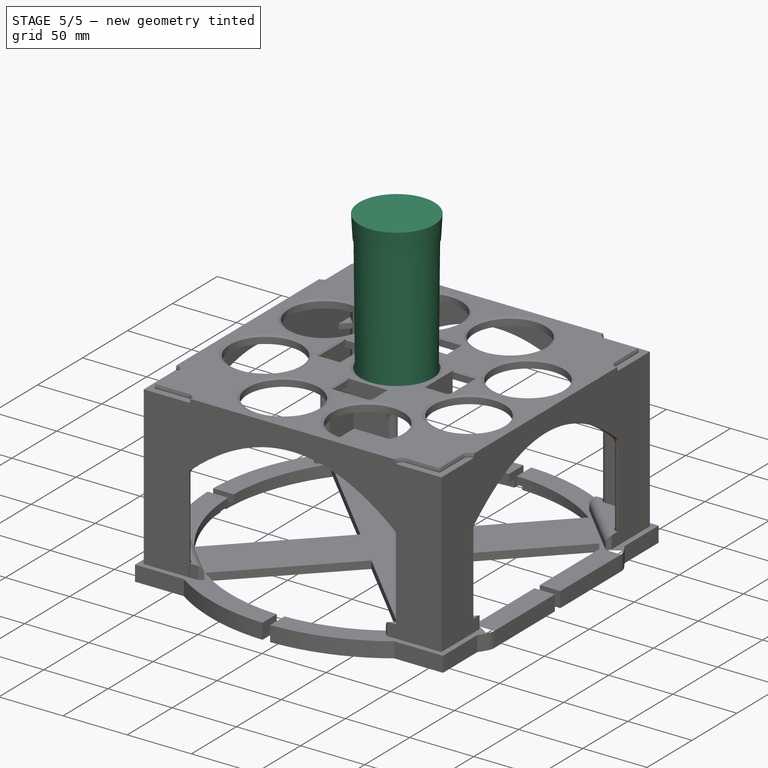
[diagram: stage 5 of 5 — iso view after this stage's code; geometry added in this stage tinted green]
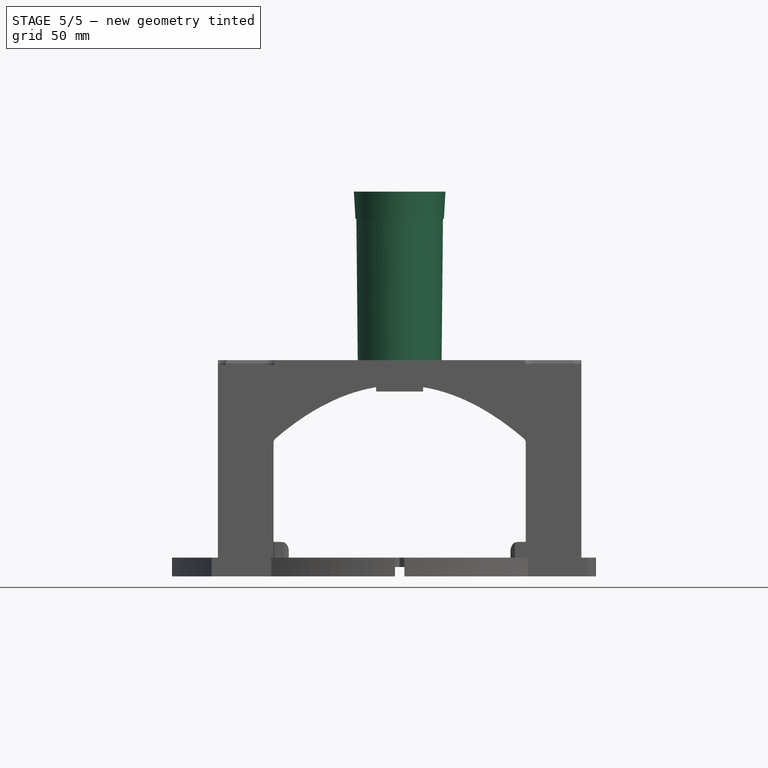
[diagram: stage 5 of 5 — front view after this stage's code; geometry added in this stage tinted green]
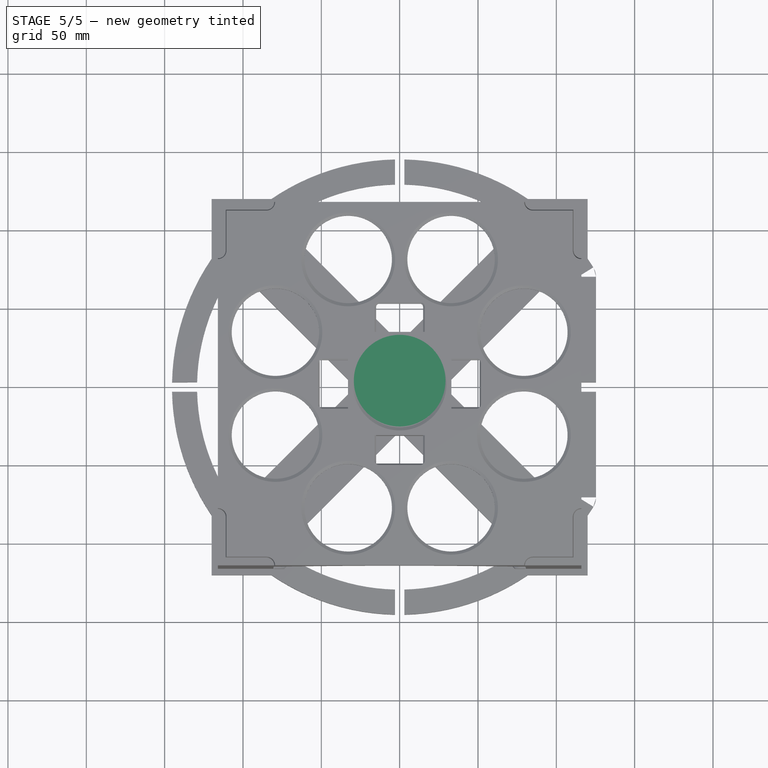
[diagram: stage 5 of 5 — top view after this stage's code; geometry added in this stage tinted green]
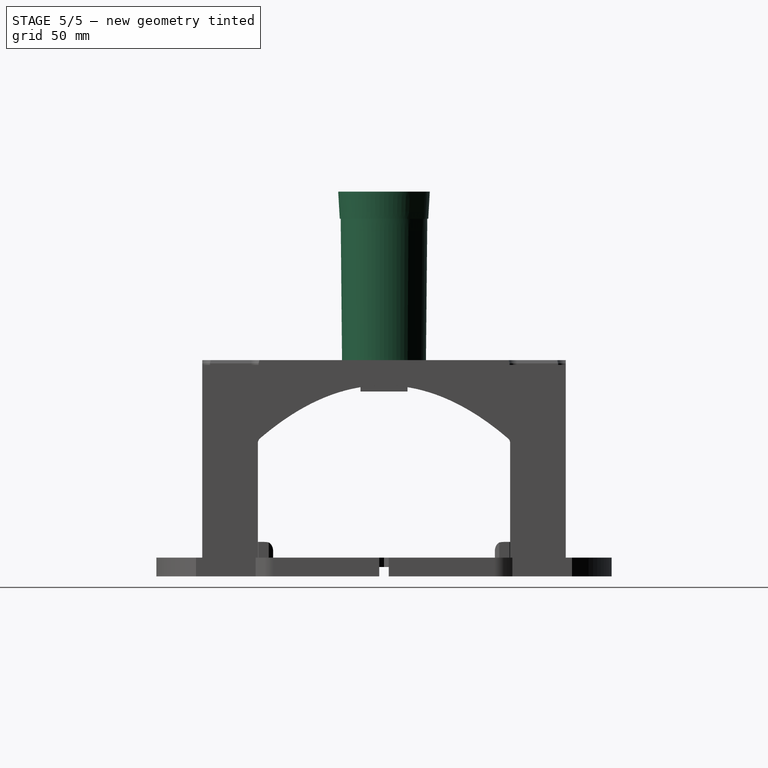
[diagram: stage 5 of 5 — right view after this stage's code; geometry added in this stage tinted green]
FEATURE [Sketcher::SketchObject] Sketch008
  FullyConstrained = true
  MapMode = 5
  Support = -> [XY_Plane002]
  sketch-geometry (1):
    g0: Circle CenterX=0 CenterY=0 CenterZ=0 NormalX=0 NormalY=0 NormalZ=1 AngleXU=0 Radius=26.725
  constraints (2):
    c: Coincident(g0,g-1)
    c: Diameter(g0) = 53.45
FEATURE [Sketcher::SketchObject] Sketch009
  AttachmentOffset = pos=(0,0,96.3) rot=(0,0,1;0rad)
  FullyConstrained = true
  MapMode = 5
  Placement = pos=(0,0,96.3) rot=(0,0,1;0rad)
  Support = -> [XY_Plane002]
  sketch-geometry (1):
    g0: Circle CenterX=0 CenterY=0 CenterZ=0 NormalX=0 NormalY=0 NormalZ=1 AngleXU=0 Radius=27.65
  constraints (2):
    c: Coincident(g0,g-1)
    c: Diameter(g0) = 55.3
FEATURE [PartDesign::AdditiveLoft] AdditiveLoft
  Closed = false
  Profile = -> Sketch008
  Ruled = false
  Sections = -> [Sketch009]
FEATURE [Sketcher::SketchObject] Sketch010
  FullyConstrained = true
  MapMode = 5
  Placement = pos=(0,0,96.3) rot=(0,0,1;0rad)
  Support = -> [AdditiveLoft]
  sketch-geometry (1):
    g0: Circle CenterX=0 CenterY=0 CenterZ=0 NormalX=0 NormalY=0 NormalZ=1 AngleXU=0 Radius=28.25
  constraints (2):
    c: Coincident(g0,g-1)
    c: Diameter(g0) = 56.5
FEATURE [Sketcher::SketchObject] Sketch011
  AttachmentOffset = pos=(0,0,17.3) rot=(0,0,1;0rad)
  FullyConstrained = true
  MapMode = 5
  Placement = pos=(0,0,113.6) rot=(0,0,1;0rad)
  Support = -> [AdditiveLoft]
  sketch-geometry (1):
    g0: Circle CenterX=0 CenterY=0 CenterZ=0 NormalX=0 NormalY=0 NormalZ=1 AngleXU=0 Radius=29.25
  constraints (2):
    c: Coincident(g0,g-1)
    c: Diameter(g0) = 58.5
FEATURE [PartDesign::AdditiveLoft] AdditiveLoft001  label="AdditiveLoft001: Top and THREADS"
  BaseFeature = -> AdditiveLoft
  Closed = false
  Profile = -> Sketch010
  Ruled = false
  Sections = -> [Sketch011]
FEATURE [PartDesign::Body] Body001  label="Body001: Long Cup (uncapped)"
  Group = -> [Sketch008,Sketch009,AdditiveLoft,Sketch010,Sketch011,AdditiveLoft001]
  Origin = -> Origin002
  Placement = pos=(0,0,-90) rot=(0,0,1;0rad)
  Tip = -> AdditiveLoft001
FEATURE [Sketcher::SketchObject] Sketch012
  FullyConstrained = true
  MapMode = 5
  Support = -> [XY_Plane003]
  sketch-geometry (1):
    g0: Circle CenterX=0 CenterY=0 CenterZ=0 NormalX=0 NormalY=0 NormalZ=1 AngleXU=0 Radius=26.725
  constraints (2):
    c: Coincident(g0,g-1)
    c: Diameter(g0) = 53.45
FEATURE [Sketcher::SketchObject] Sketch013
  AttachmentOffset = pos=(0,0,96.3) rot=(0,0,1;0rad)
  FullyConstrained = true
  MapMode = 5
  Placement = pos=(0,0,96.3) rot=(0,0,1;0rad)
  Support = -> [XY_Plane003]
  sketch-geometry (1):
    g0: Circle CenterX=0 CenterY=0 CenterZ=0 NormalX=0 NormalY=0 NormalZ=1 AngleXU=0 Radius=27.65
  constraints (2):
    c: Coincident(g0,g-1)
    c: Diameter(g0) = 55.3
FEATURE [PartDesign::AdditiveLoft] AdditiveLoft002
  Closed = false
  Profile = -> Sketch012
  Ruled = false
  Sections = -> [Sketch013]
FEATURE [Sketcher::SketchObject] Sketch014
  FullyConstrained = true
  MapMode = 5
  Placement = pos=(0,0,96.3) rot=(0,0,1;0rad)
  Support = -> [AdditiveLoft002]
  sketch-geometry (1):
    g0: Circle CenterX=0 CenterY=0 CenterZ=0 NormalX=0 NormalY=0 NormalZ=1 AngleXU=0 Radius=28.25
  constraints (2):
    c: Coincident(g0,g-1)
    c: Diameter(g0) = 56.5
FEATURE [Sketcher::SketchObject] Sketch015
  AttachmentOffset = pos=(0,0,17.3) rot=(0,0,1;0rad)
  FullyConstrained = true
  MapMode = 5
  Placement = pos=(0,0,113.6) rot=(0,0,1;0rad)
  Support = -> [AdditiveLoft002]
  sketch-geometry (1):
    g0: Circle CenterX=0 CenterY=0 CenterZ=0 NormalX=0 NormalY=0 NormalZ=1 AngleXU=0 Radius=29.25
  constraints (2):
    c: Coincident(g0,g-1)
    c: Diameter(g0) = 58.5
FEATURE [PartDesign::AdditiveLoft] AdditiveLoft003  label="AdditiveLoft001: Top and THREADS001"
  BaseFeature = -> AdditiveLoft002
  Closed = false
  Profile = -> Sketch014
  Ruled = false
  Sections = -> [Sketch015]
FEATURE [PartDesign::Body] Body002  label="Body001: Long Cup (uncapped)001"
  Group = -> [Sketch012,Sketch013,AdditiveLoft002,Sketch014,Sketch015,AdditiveLoft003]
  Origin = -> Origin003
  Placement = pos=(-79.5,33,-90) rot=(0,0,1;0rad)
  Tip = -> AdditiveLoft003
FEATURE [Sketcher::SketchObject] Sketch016
  FullyConstrained = true
  MapMode = 5
  Support = -> [XY_Plane004]
  sketch-geometry (1):
    g0: Circle CenterX=0 CenterY=0 CenterZ=0 NormalX=0 NormalY=0 NormalZ=1 AngleXU=0 Radius=26.725
  constraints (2):
    c: Coincident(g0,g-1)
    c: Diameter(g0) = 53.45
FEATURE [Sketcher::SketchObject] Sketch017
  AttachmentOffset = pos=(0,0,96.3) rot=(0,0,1;0rad)
  FullyConstrained = true
  MapMode = 5
  Placement = pos=(0,0,96.3) rot=(0,0,1;0rad)
  Support = -> [XY_Plane004]
  sketch-geometry (1):
    g0: Circle CenterX=0 CenterY=0 CenterZ=0 NormalX=0 NormalY=0 NormalZ=1 AngleXU=0 Radius=27.65
  constraints (2):
    c: Coincident(g0,g-1)
    c: Diameter(g0) = 55.3
FEATURE [PartDesign::AdditiveLoft] AdditiveLoft004
  Closed = false
  Profile = -> Sketch016
  Ruled = false
  Sections = -> [Sketch017]
FEATURE [Sketcher::SketchObject] Sketch018
  FullyConstrained = true
  MapMode = 5
  Placement = pos=(0,0,96.3) rot=(0,0,1;0rad)
  Support = -> [AdditiveLoft004]
  sketch-geometry (1):
    g0: Circle CenterX=0 CenterY=0 CenterZ=0 NormalX=0 NormalY=0 NormalZ=1 AngleXU=0 Radius=28.25
  constraints (2):
    c: Coincident(g0,g-1)
    c: Diameter(g0) = 56.5
FEATURE [Sketcher::SketchObject] Sketch019
  AttachmentOffset = pos=(0,0,17.3) rot=(0,0,1;0rad)
  FullyConstrained = true
  MapMode = 5
  Placement = pos=(0,0,113.6) rot=(0,0,1;0rad)
  Support = -> [AdditiveLoft004]
  sketch-geometry (1):
    g0: Circle CenterX=0 CenterY=0 CenterZ=0 NormalX=0 NormalY=0 NormalZ=1 AngleXU=0 Radius=29.25
  constraints (2):
    c: Coincident(g0,g-1)
    c: Diameter(g0) = 58.5
FEATURE [PartDesign::AdditiveLoft] AdditiveLoft005  label="AdditiveLoft001: Top and THREADS002"
  BaseFeature = -> AdditiveLoft004
  Closed = false
  Profile = -> Sketch018
  Ruled = false
  Sections = -> [Sketch019]
FEATURE [PartDesign::Body] Body003  label="Body001: Long Cup (uncapped)002"
  Group = -> [Sketch016,Sketch017,AdditiveLoft004,Sketch018,Sketch019,AdditiveLoft005]
  Origin = -> Origin004
  Placement = pos=(-33,79,-90) rot=(0,0,1;0rad)
  Tip = -> AdditiveLoft005
FEATURE [Sketcher::SketchObject] Sketch020
  FullyConstrained = true
  MapMode = 5
  Support = -> [XY_Plane005]
  sketch-geometry (1):
    g0: Circle CenterX=0 CenterY=0 CenterZ=0 NormalX=0 NormalY=0 NormalZ=1 AngleXU=0 Radius=26.725
  constraints (2):
    c: Coincident(g0,g-1)
    c: Diameter(g0) = 53.45
FEATURE [Sketcher::SketchObject] Sketch021
  AttachmentOffset = pos=(0,0,96.3) rot=(0,0,1;0rad)
  FullyConstrained = true
  MapMode = 5
  Placement = pos=(0,0,96.3) rot=(0,0,1;0rad)
  Support = -> [XY_Plane005]
  sketch-geometry (1):
    g0: Circle CenterX=0 CenterY=0 CenterZ=0 NormalX=0 NormalY=0 NormalZ=1 AngleXU=0 Radius=27.65
  constraints (2):
    c: Coincident(g0,g-1)
    c: Diameter(g0) = 55.3
FEATURE [PartDesign::AdditiveLoft] AdditiveLoft006
  Closed = false
  Profile = -> Sketch020
  Ruled = false
  Sections = -> [Sketch021]
FEATURE [Sketcher::SketchObject] Sketch022
  FullyConstrained = true
  MapMode = 5
  Placement = pos=(0,0,96.3) rot=(0,0,1;0rad)
  Support = -> [AdditiveLoft006]
  sketch-geometry (1):
    g0: Circle CenterX=0 CenterY=0 CenterZ=0 NormalX=0 NormalY=0 NormalZ=1 AngleXU=0 Radius=28.25
  constraints (2):
    c: Coincident(g0,g-1)
    c: Diameter(g0) = 56.5
FEATURE [Sketcher::SketchObject] Sketch023
  AttachmentOffset = pos=(0,0,17.3) rot=(0,0,1;0rad)
  FullyConstrained = true
  MapMode = 5
  Placement = pos=(0,0,113.6) rot=(0,0,1;0rad)
  Support = -> [AdditiveLoft006]
  sketch-geometry (1):
    g0: Circle CenterX=0 CenterY=0 CenterZ=0 NormalX=0 NormalY=0 NormalZ=1 AngleXU=0 Radius=29.25
  constraints (2):
    c: Coincident(g0,g-1)
    c: Diameter(g0) = 58.5
FEATURE [PartDesign::AdditiveLoft] AdditiveLoft007  label="AdditiveLoft001: Top and THREADS003"
  BaseFeature = -> AdditiveLoft006
  Closed = false
  Profile = -> Sketch022
  Ruled = false
  Sections = -> [Sketch023]
FEATURE [PartDesign::Body] Body004  label="Body001: Long Cup (uncapped)003"
  Group = -> [Sketch020,Sketch021,AdditiveLoft006,Sketch022,Sketch023,AdditiveLoft007]
  Origin = -> Origin005
  Placement = pos=(-79.5,-33,-90) rot=(0,0,1;0rad)
  Tip = -> AdditiveLoft007
FEATURE [Sketcher::SketchObject] Sketch032
  FullyConstrained = true
  MapMode = 5
  Support = -> [XY_Plane007]
  sketch-geometry (1):
    g0: Circle CenterX=0 CenterY=0 CenterZ=0 NormalX=0 NormalY=0 NormalZ=1 AngleXU=0 Radius=26.725
  constraints (2):
    c: Coincident(g0,g-1)
    c: Diameter(g0) = 53.45
FEATURE [Sketcher::SketchObject] Sketch033
  AttachmentOffset = pos=(0,0,96.3) rot=(0,0,1;0rad)
  FullyConstrained = true
  MapMode = 5
  Placement = pos=(0,0,96.3) rot=(0,0,1;0rad)
  Support = -> [XY_Plane007]
  sketch-geometry (1):
    g0: Circle CenterX=0 CenterY=0 CenterZ=0 NormalX=0 NormalY=0 NormalZ=1 AngleXU=0 Radius=27.65
  constraints (2):
    c: Coincident(g0,g-1)
    c: Diameter(g0) = 55.3
FEATURE [PartDesign::AdditiveLoft] AdditiveLoft008
  Closed = false
  Profile = -> Sketch032
  Ruled = false
  Sections = -> [Sketch033]
FEATURE [Sketcher::SketchObject] Sketch034
  FullyConstrained = true
  MapMode = 5
  Placement = pos=(0,0,96.3) rot=(0,0,1;0rad)
  Support = -> [AdditiveLoft008]
  sketch-geometry (1):
    g0: Circle CenterX=0 CenterY=0 CenterZ=0 NormalX=0 NormalY=0 NormalZ=1 AngleXU=0 Radius=28.25
  constraints (2):
    c: Coincident(g0,g-1)
    c: Diameter(g0) = 56.5
FEATURE [Sketcher::SketchObject] Sketch035
  AttachmentOffset = pos=(0,0,17.3) rot=(0,0,1;0rad)
  FullyConstrained = true
  MapMode = 5
  Placement = pos=(0,0,113.6) rot=(0,0,1;0rad)
  Support = -> [AdditiveLoft008]
  sketch-geometry (1):
    g0: Circle CenterX=0 CenterY=0 CenterZ=0 NormalX=0 NormalY=0 NormalZ=1 AngleXU=0 Radius=29.25
  constraints (2):
    c: Coincident(g0,g-1)
    c: Diameter(g0) = 58.5
FEATURE [PartDesign::AdditiveLoft] AdditiveLoft009  label="AdditiveLoft001: Top and THREADS004"
  BaseFeature = -> AdditiveLoft008
  Closed = false
  Profile = -> Sketch034
  Ruled = false
  Sections = -> [Sketch035]
FEATURE [PartDesign::Body] Body006  label="Body001: Long Cup (uncapped)004"
  Group = -> [Sketch032,Sketch033,AdditiveLoft008,Sketch034,Sketch035,AdditiveLoft009]
  Origin = -> Origin007
  Placement = pos=(0,0,33) rot=(0,0,1;0rad)
  Tip = -> AdditiveLoft009
FEATURE [Sketcher::SketchObject] Sketch036
  FullyConstrained = true
  MapMode = 5
  Support = -> [XY_Plane008]
  sketch-geometry (1):
    g0: Circle CenterX=0 CenterY=0 CenterZ=0 NormalX=0 NormalY=0 NormalZ=1 AngleXU=0 Radius=26.725
  constraints (2):
    c: Coincident(g0,g-1)
    c: Diameter(g0) = 53.45
FEATURE [Sketcher::SketchObject] Sketch037
  AttachmentOffset = pos=(0,0,96.3) rot=(0,0,1;0rad)
  FullyConstrained = true
  MapMode = 5
  Placement = pos=(0,0,96.3) rot=(0,0,1;0rad)
  Support = -> [XY_Plane008]
  sketch-geometry (1):
    g0: Circle CenterX=0 CenterY=0 CenterZ=0 NormalX=0 NormalY=0 NormalZ=1 AngleXU=0 Radius=27.65
  constraints (2):
    c: Coincident(g0,g-1)
    c: Diameter(g0) = 55.3
FEATURE [PartDesign::AdditiveLoft] AdditiveLoft010
  Closed = false
  Profile = -> Sketch036
  Ruled = false
  Sections = -> [Sketch037]
FEATURE [Sketcher::SketchObject] Sketch038
  FullyConstrained = true
  MapMode = 5
  Placement = pos=(0,0,96.3) rot=(0,0,1;0rad)
  Support = -> [AdditiveLoft010]
  sketch-geometry (1):
    g0: Circle CenterX=0 CenterY=0 CenterZ=0 NormalX=0 NormalY=0 NormalZ=1 AngleXU=0 Radius=28.25
  constraints (2):
    c: Coincident(g0,g-1)
    c: Diameter(g0) = 56.5
FEATURE [Sketcher::SketchObject] Sketch039
  AttachmentOffset = pos=(0,0,17.3) rot=(0,0,1;0rad)
  FullyConstrained = true
  MapMode = 5
  Placement = pos=(0,0,113.6) rot=(0,0,1;0rad)
  Support = -> [AdditiveLoft010]
  sketch-geometry (1):
    g0: Circle CenterX=0 CenterY=0 CenterZ=0 NormalX=0 NormalY=0 NormalZ=1 AngleXU=0 Radius=29.25
  constraints (2):
    c: Coincident(g0,g-1)
    c: Diameter(g0) = 58.5
FEATURE [PartDesign::AdditiveLoft] AdditiveLoft011  label="AdditiveLoft001: Top and THREADS005"
  BaseFeature = -> AdditiveLoft010
  Closed = false
  Profile = -> Sketch038
  Ruled = false
  Sections = -> [Sketch039]
FEATURE [PartDesign::Body] Body007  label="Body001: Long Cup (uncapped)005"
  Group = -> [Sketch036,Sketch037,AdditiveLoft010,Sketch038,Sketch039,AdditiveLoft011]
  Origin = -> Origin008
  Placement = pos=(-79.5,33,33) rot=(0,0,1;0rad)
  Tip = -> AdditiveLoft011
FEATURE [Sketcher::SketchObject] Sketch040
  FullyConstrained = true
  MapMode = 5
  Support = -> [XY_Plane009]
  sketch-geometry (1):
    g0: Circle CenterX=0 CenterY=0 CenterZ=0 NormalX=0 NormalY=0 NormalZ=1 AngleXU=0 Radius=26.725
  constraints (2):
    c: Coincident(g0,g-1)
    c: Diameter(g0) = 53.45
FEATURE [Sketcher::SketchObject] Sketch041
  AttachmentOffset = pos=(0,0,96.3) rot=(0,0,1;0rad)
  FullyConstrained = true
  MapMode = 5
  Placement = pos=(0,0,96.3) rot=(0,0,1;0rad)
  Support = -> [XY_Plane009]
  sketch-geometry (1):
    g0: Circle CenterX=0 CenterY=0 CenterZ=0 NormalX=0 NormalY=0 NormalZ=1 AngleXU=0 Radius=27.65
  constraints (2):
    c: Coincident(g0,g-1)
    c: Diameter(g0) = 55.3
FEATURE [PartDesign::AdditiveLoft] AdditiveLoft012
  Closed = false
  Profile = -> Sketch040
  Ruled = false
  Sections = -> [Sketch041]
FEATURE [Sketcher::SketchObject] Sketch042
  FullyConstrained = true
  MapMode = 5
  Placement = pos=(0,0,96.3) rot=(0,0,1;0rad)
  Support = -> [AdditiveLoft012]
  sketch-geometry (1):
    g0: Circle CenterX=0 CenterY=0 CenterZ=0 NormalX=0 NormalY=0 NormalZ=1 AngleXU=0 Radius=28.25
  constraints (2):
    c: Coincident(g0,g-1)
    c: Diameter(g0) = 56.5
FEATURE [Sketcher::SketchObject] Sketch043
  AttachmentOffset = pos=(0,0,17.3) rot=(0,0,1;0rad)
  FullyConstrained = true
  MapMode = 5
  Placement = pos=(0,0,113.6) rot=(0,0,1;0rad)
  Support = -> [AdditiveLoft012]
  sketch-geometry (1):
    g0: Circle CenterX=0 CenterY=0 CenterZ=0 NormalX=0 NormalY=0 NormalZ=1 AngleXU=0 Radius=29.25
  constraints (2):
    c: Coincident(g0,g-1)
    c: Diameter(g0) = 58.5
FEATURE [PartDesign::AdditiveLoft] AdditiveLoft013  label="AdditiveLoft001: Top and THREADS006"
  BaseFeature = -> AdditiveLoft012
  Closed = false
  Profile = -> Sketch042
  Ruled = false
  Sections = -> [Sketch043]
FEATURE [PartDesign::Body] Body008  label="Body001: Long Cup (uncapped)006"
  Group = -> [Sketch040,Sketch041,AdditiveLoft012,Sketch042,Sketch043,AdditiveLoft013]
  Origin = -> Origin009
  Placement = pos=(-33,79,33) rot=(0,0,1;0rad)
  Tip = -> AdditiveLoft013
FEATURE [Sketcher::SketchObject] Sketch044
  FullyConstrained = true
  MapMode = 5
  Support = -> [XY_Plane010]
  sketch-geometry (1):
    g0: Circle CenterX=0 CenterY=0 CenterZ=0 NormalX=0 NormalY=0 NormalZ=1 AngleXU=0 Radius=26.725
  constraints (2):
    c: Coincident(g0,g-1)
    c: Diameter(g0) = 53.45
FEATURE [Sketcher::SketchObject] Sketch045
  AttachmentOffset = pos=(0,0,96.3) rot=(0,0,1;0rad)
  FullyConstrained = true
  MapMode = 5
  Placement = pos=(0,0,96.3) rot=(0,0,1;0rad)
  Support = -> [XY_Plane010]
  sketch-geometry (1):
    g0: Circle CenterX=0 CenterY=0 CenterZ=0 NormalX=0 NormalY=0 NormalZ=1 AngleXU=0 Radius=27.65
  constraints (2):
    c: Coincident(g0,g-1)
    c: Diameter(g0) = 55.3
FEATURE [PartDesign::AdditiveLoft] AdditiveLoft014
  Closed = false
  Profile = -> Sketch044
  Ruled = false
  Sections = -> [Sketch045]
FEATURE [Sketcher::SketchObject] Sketch046
  FullyConstrained = true
  MapMode = 5
  Placement = pos=(0,0,96.3) rot=(0,0,1;0rad)
  Support = -> [AdditiveLoft014]
  sketch-geometry (1):
    g0: Circle CenterX=0 CenterY=0 CenterZ=0 NormalX=0 NormalY=0 NormalZ=1 AngleXU=0 Radius=28.25
  constraints (2):
    c: Coincident(g0,g-1)
    c: Diameter(g0) = 56.5
FEATURE [Sketcher::SketchObject] Sketch047
  AttachmentOffset = pos=(0,0,17.3) rot=(0,0,1;0rad)
  FullyConstrained = true
  MapMode = 5
  Placement = pos=(0,0,113.6) rot=(0,0,1;0rad)
  Support = -> [AdditiveLoft014]
  sketch-geometry (1):
    g0: Circle CenterX=0 CenterY=0 CenterZ=0 NormalX=0 NormalY=0 NormalZ=1 AngleXU=0 Radius=29.25
  constraints (2):
    c: Coincident(g0,g-1)
    c: Diameter(g0) = 58.5
FEATURE [PartDesign::AdditiveLoft] AdditiveLoft015  label="AdditiveLoft001: Top and THREADS007"
  BaseFeature = -> AdditiveLoft014
  Closed = false
  Profile = -> Sketch046
  Ruled = false
  Sections = -> [Sketch047]
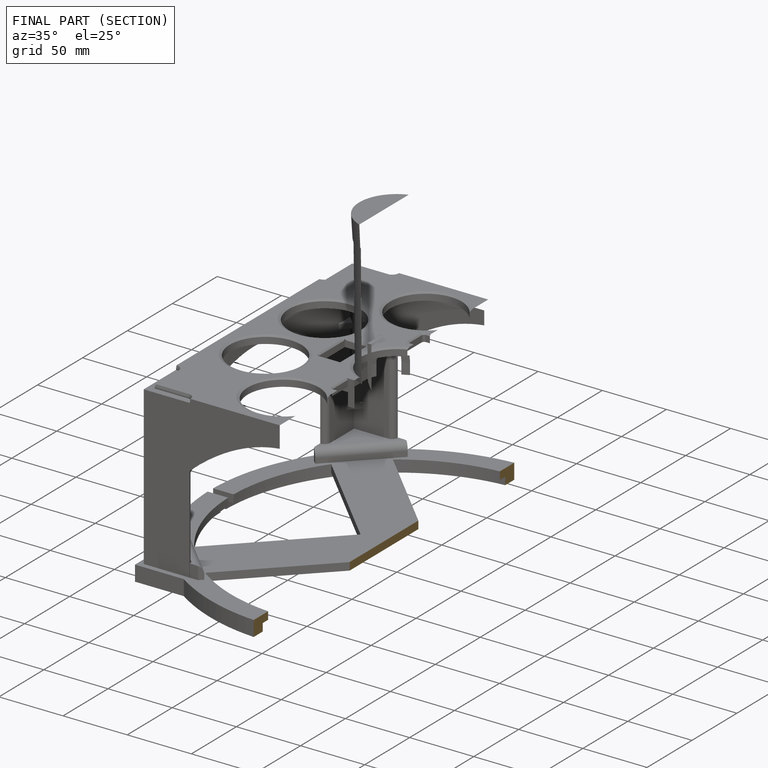
[diagram: finished part — half-section view (interior)]
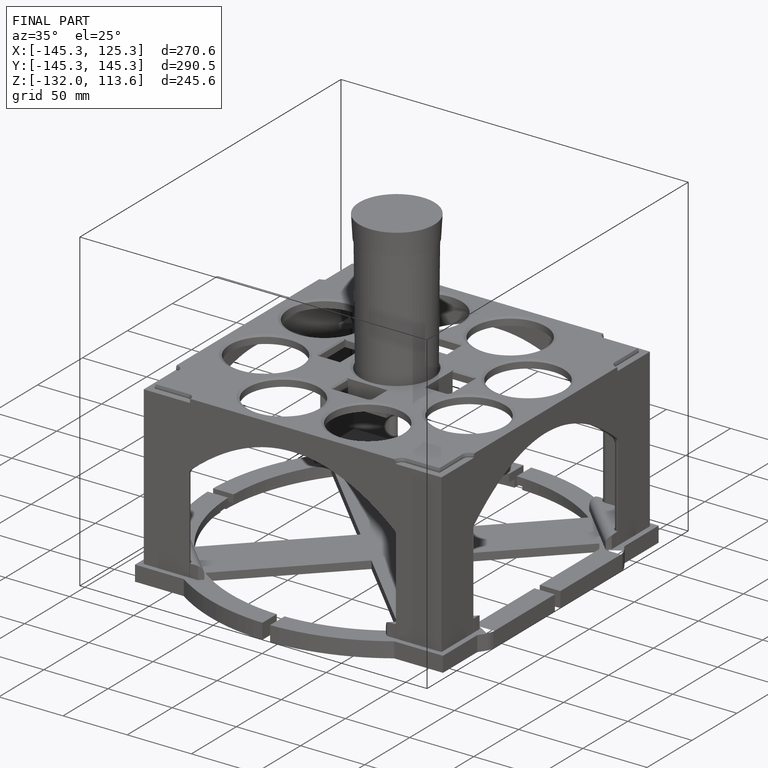
[diagram: finished part — iso view with bounding-box wireframe]
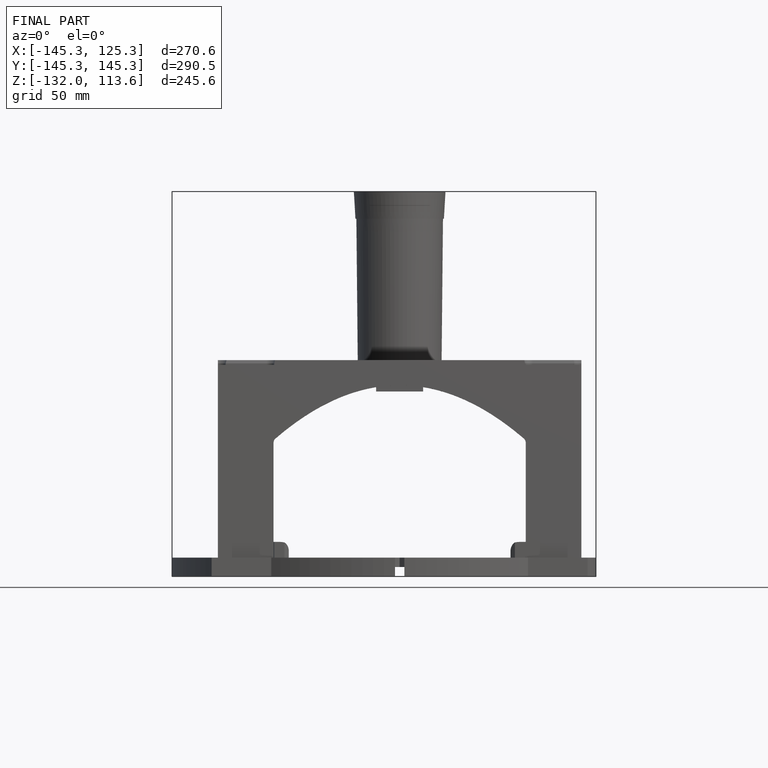
[diagram: finished part — front view with bounding-box wireframe]
